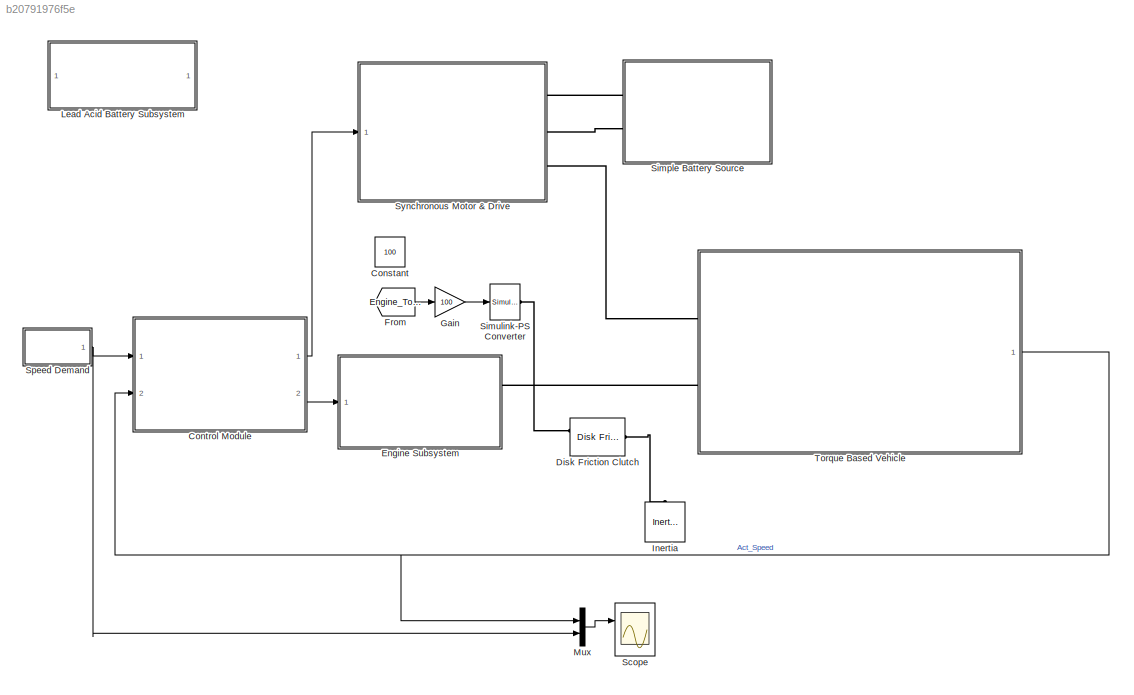
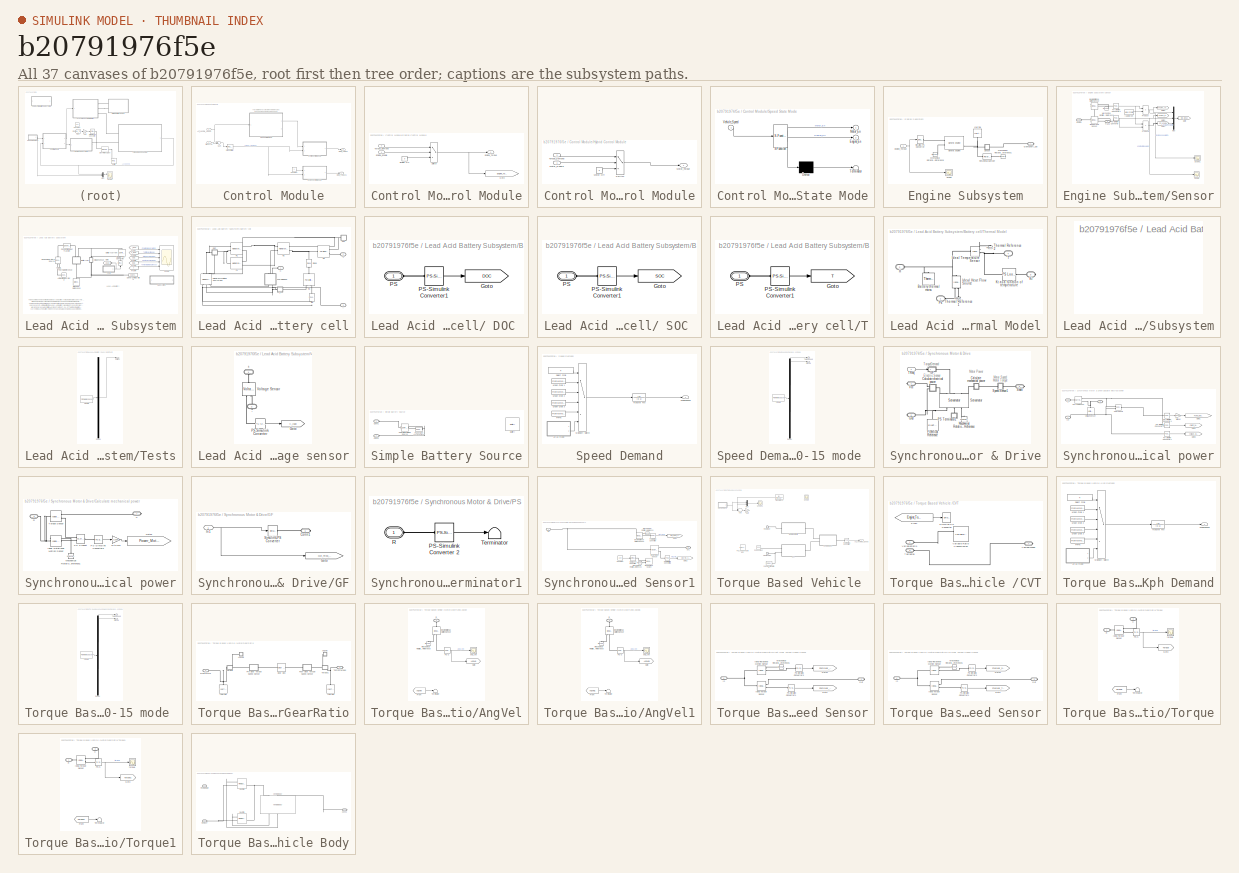
[diagram: thumbnail index - all 37 canvases of the model, root first then tree order]
MODEL slx_b20791976f5e
KIND model
BLOCK [Constant] Constant
  Commented = on
  Value = 100
BLOCK [SubSystem] Control Module
  FunctionWithSeparateData = off
  MaskHideContents = off
  MinAlgLoopOccurrences = off
  Opaque = off
  Ports = [2, 2]
  PropExecContextOutsideSubsystem = off
  RTWSystemCode = Auto
  RequestExecContextInheritance = off
BLOCK [Inport] Control Module/Act_Vehicle_Speed
  IconDisplay = Port number
  Port = 2
BLOCK [Constant] Control Module/Constant
BLOCK [Inport] Control Module/DriveCycle
  IconDisplay = Port number
BLOCK [SubSystem] Control Module/Engine Control Module
  FunctionWithSeparateData = off
  MaskHideContents = off
  MinAlgLoopOccurrences = off
  Opaque = off
  Ports = [2, 1]
  PropExecContextOutsideSubsystem = off
  RTWSystemCode = Auto
  RequestExecContextInheritance = off
BLOCK [Constant] Control Module/Engine Control Module/Engine Off
  Value = 0
BLOCK [Inport] Control Module/Engine Control Module/Engine_Enable
  IconDisplay = Port number
BLOCK [Outport] Control Module/Engine Control Module/Engine_Torque
  IconDisplay = Port number
BLOCK [Goto] Control Module/Engine Control Module/Goto
  GotoTag = Engine_Torque_Demand
  TagVisibility = global
BLOCK [Switch] Control Module/Engine Control Module/Switch
  InputSameDT = off
  SaturateOnIntegerOverflow = off
  Threshold = 0.5
BLOCK [Inport] Control Module/Engine Control Module/Torque_Demand
  IconDisplay = Port number
  Port = 2
BLOCK [SubSystem] Control Module/Hybrid Control Module
  Commented = on
  FunctionWithSeparateData = off
  MaskHideContents = off
  MinAlgLoopOccurrences = off
  Opaque = off
  Ports = [2, 1]
  PropExecContextOutsideSubsystem = off
  RTWSystemCode = Auto
  RequestExecContextInheritance = off
BLOCK [Constant] Control Module/Hybrid Control Module/Motor Off
  Value = 0
BLOCK [Inport] Control Module/Hybrid Control Module/Motor_Enable
  IconDisplay = Port number
BLOCK [Outport] Control Module/Hybrid Control Module/Motor_Torque
  IconDisplay = Port number
BLOCK [Switch] Control Module/Hybrid Control Module/Switch
  InputSameDT = off
  SaturateOnIntegerOverflow = off
  Threshold = 0.5
BLOCK [Inport] Control Module/Hybrid Control Module/Torque_Demand
  IconDisplay = Port number
  Port = 2
BLOCK [Outport] Control Module/Motor_Torque
  IconDisplay = Port number
BLOCK [Outport] Control Module/Motor_Torque1
  IconDisplay = Port number
  Port = 2
BLOCK [Reference] Control Module/PID Controller  REF=simulink/Continuous/PID Controller
  AntiWindupMode = none
  Controller = P
  D = 0
  DOutDataTypeStr = Inherit: Inherit via internal rule
  DOutMax = []
  DOutMin = []
  DParamDataTypeStr = Inherit: Inherit via internal rule
  DParamMax = []
  DParamMin = []
  ExternalReset = none
  FilterContinuousStateAttributes = ''
  FilterMethod = Forward Euler
  FilterOutDataTypeStr = Inherit: Inherit via internal rule
  FilterOutMax = []
  FilterOutMin = []
  FilterRTWStateStorageClass = Auto
  FilterStateMustResolveToSignalObject = off
  Form = Parallel
  I = 0
  IOutDataTypeStr = Inherit: Inherit via internal rule
  IOutMax = []
  IOutMin = []
  IParamDataTypeStr = Inherit: Inherit via internal rule
  IParamMax = []
  IParamMin = []
  IgnoreLimit = off
  InitialConditionForFilter = 0
  InitialConditionForIntegrator = 0
  InitialConditionSource = internal
  IntegratorContinuousStateAttributes = ''
  IntegratorMethod = Forward Euler
  IntegratorOutDataTypeStr = Inherit: Inherit via internal rule
  IntegratorOutMax = []
  IntegratorOutMin = []
  IntegratorRTWStateStorageClass = Auto
  IntegratorStateMustResolveToSignalObject = off
  Kb = 1
  KbOutDataTypeStr = Inherit: Inherit via internal rule
  KbOutMax = []
  KbOutMin = []
  KbParamDataTypeStr = Inherit: Inherit via internal rule
  KbParamMax = []
  KbParamMin = []
  Kt = 1
  KtOutDataTypeStr = Inherit: Inherit via internal rule
  KtOutMax = []
  KtOutMin = []
  KtParamDataTypeStr = Inherit: Inherit via internal rule
  KtParamMax = []
  KtParamMin = []
  LimitOutput = off
  LinearizeAsGain = on
  LockScale = off
  LowerSaturationLimit = -inf
  N = 0
  NOutDataTypeStr = Inherit: Inherit via internal rule
  NOutMax = []
  NOutMin = []
  NParamDataTypeStr = Inherit: Inherit via internal rule
  NParamMax = []
  NParamMin = []
  P = 100
  POutDataTypeStr = Inherit: Inherit via internal rule
  POutMax = []
  POutMin = []
  PParamDataTypeStr = Inherit: Inherit via internal rule
  PParamMax = []
  PParamMin = []
  Ports = [1, 1]
  RndMeth = Floor
  SampleTime = 1
  SaturateOnIntegerOverflow = off
  SaturationOutDataTypeStr = Inherit: Same as input
  SaturationOutMax = []
  SaturationOutMin = []
  SourceBlock = simulink/Continuous/PID Controller
  SourceType = PID 1dof
  SumAccumDataTypeStr = Inherit: Inherit via internal rule
  SumDAccumDataTypeStr = Inherit: Inherit via internal rule
  SumDOutDataTypeStr = Inherit: Inherit via internal rule
  SumDOutMax = []
  SumDOutMin = []
  SumI1AccumDataTypeStr = Inherit: Inherit via internal rule
  SumI1OutDataTypeStr = Inherit: Inherit via internal rule
  SumI1OutMax = []
  SumI1OutMin = []
  SumI2AccumDataTypeStr = Inherit: Inherit via internal rule
  SumI2OutDataTypeStr = Inherit: Inherit via internal rule
  SumI2OutMax = []
  SumI2OutMin = []
  SumI3AccumDataTypeStr = Inherit: Inherit via internal rule
  SumI3OutDataTypeStr = Inherit: Inherit via internal rule
  SumI3OutMax = []
  SumI3OutMin = []
  SumOutDataTypeStr = Inherit: Inherit via internal rule
  SumOutMax = []
  SumOutMin = []
  TimeDomain = Continuous-time
  TrackingMode = off
  UpperSaturationLimit = inf
  ZeroCross = on
BLOCK [SubSystem] Control Module/Speed State Mode
  Commented = on
  ErrorFcn = Stateflow.Translate.translate
  FunctionWithSeparateData = off
  MaskHideContents = off
  MinAlgLoopOccurrences = off
  Opaque = off
  PermitHierarchicalResolution = ExplicitOnly
  Ports = [1, 2]
  PropExecContextOutsideSubsystem = off
  RTWSystemCode = Auto
  RequestExecContextInheritance = off
  SFBlockType = Chart
  TreatAsAtomicUnit = on
BLOCK [Demux] Control Module/Speed State Mode/ Demux 
  Outputs = 1
  Ports = [1, 1]
BLOCK [S-Function] Control Module/Speed State Mode/ SFunction 
  EnableBusSupport = on
  FunctionName = sf_sfun
  PortCounts = [1 3]
  Ports = [1, 3]
  Tag = Stateflow S-Function System_HybridMotorcycle_v2 1
BLOCK [Terminator] Control Module/Speed State Mode/ Terminator 
BLOCK [Outport] Control Module/Speed State Mode/Engine_En
  IconDisplay = Port number
  Port = 2
BLOCK [Outport] Control Module/Speed State Mode/Motor_En
  IconDisplay = Port number
BLOCK [Inport] Control Module/Speed State Mode/Vehicle_Speed
  IconDisplay = Port number
BLOCK [Sum] Control Module/Sum
  InputSameDT = off
  Inputs = -+
  OutDataTypeStr = Inherit: Inherit via internal rule
  Ports = [2, 1]
  SaturateOnIntegerOverflow = off
BLOCK [Reference] Disk Friction Clutch  REF=sdl_lib/Clutches/Disk Friction Clutch
  ClassName = disk_friction_clutch
  Commented = on
  ComponentPath = sdl.clutches.disk_friction_clutch
  ComponentVariantNames = disk_friction_clutch
  ComponentVariants = sdl.clutches.disk_friction_clutch
  LocalVarLogging = []
  Ports = [0, 0, 0, 0, 0, 2, 1]
  SchemaVersion = 1
  SourceBlock = sdl_lib/Clutches/Disk Friction Clutch
  SourceFile = sdl.clutches.disk_friction_clutch
  SourceType = Disk Friction Clutch
  d_f = 1
  d_f_unit = 1
  d_i = 100
  d_i_unit = mm
  d_o = 150
  d_o_unit = mm
  friction_model = 1
  friction_model_unit = 1
  geometry_model = 1
  geometry_model_unit = 1
  initial_state_locked = 0
  initial_state_locked_unit = 1
  mu_coulomb = 0.3
  mu_coulomb_unit = 1
  mu_coulomb_vector = [ 0.29 0.28 0.26 0.22 0.21 0.2 0.2 0.19 0.19 0.19 0.19 0.19 ]
  mu_coulomb_vector_unit = 1
  mu_extrap_method = 1
  mu_extrap_method_unit = 1
  mu_interp_method = 1
  mu_interp_method_unit = 1
  mu_static = 0.35
  mu_static_unit = 1
  mu_visc = 0
  mu_visc_unit = N*m/(rad/s)
  mu_w_vector = [ 0 0.1 0.2 0.3 0.4 0.5 1 2 5 10 100 1000 ]
  mu_w_vector_unit = rad/s
  nS = 4
  nS_unit = 1
  piston_area = 0.001
  piston_area_unit = m^2
  pressure_min = 0.1
  pressure_min_unit = Pa
  r_eff = 130
  r_eff_unit = mm
  w_tol = 0.001
  w_tol_unit = rad/s
BLOCK [SubSystem] Engine Subsystem
  FunctionWithSeparateData = off
  MaskHideContents = off
  MinAlgLoopOccurrences = off
  Opaque = off
  Ports = [1, 0, 0, 0, 0, 0, 1]
  PropExecContextOutsideSubsystem = off
  RTWSystemCode = Auto
  RequestExecContextInheritance = off
BLOCK [PMIOPort] Engine Subsystem/CrankShaft_Out
  Port = 1
  Side = Right
BLOCK [Inport] Engine Subsystem/Engine_Torque
  IconDisplay = Port number
BLOCK [Reference] Engine Subsystem/Generic Engine  REF=sdl_lib/Engines/Generic Engine
  ClassName = generic_engine
  ComponentPath = sdl.engines.generic_engine
  ComponentVariantNames = generic_engine
  ComponentVariants = sdl.engines.generic_engine
  LocalVarLogging = []
  P_max = 8300
  P_max_unit = W
  Ports = [0, 0, 0, 0, 0, 2, 3]
  SchemaVersion = 1
  SourceBlock = sdl_lib/Engines/Generic Engine
  SourceFile = sdl.engines.generic_engine
  SourceType = Generic Engine
  T0 = 0
  T0_unit = 1
  bmep_tab = [ 0 250 500 625 750 1000 1.15e+3 1.25e+3 ]
  bmep_tab_unit = kPa
  bsfc_tab = [ 410 380 300 280 270 290 320 380; 410 370 290 270 260 270 285 320; 415 380 290 275 265 270 270 300; 420 390 310 290 285 280 280 285; 430 410 340 320 310 300 310 320; 450 430 370 340 330 330 350 380 ]
  bsfc_tab_unit = g/hr/kW
  displaced_volume = 400
  displaced_volume_unit = cm^3
  engine_type = 1
  engine_type_unit = 1
  fc_interp_method = 1
  fc_interp_method_unit = 1
  fc_model = 1
  fc_model_unit = 1
  fc_per_rev = 25
  fc_per_rev_unit = mg/rev
  fc_tab = [ 0.5 0.9 1.4 1.6 1.9 2.7 3.4 4.4; 1 1.7 2.7 3.1 3.6 5 6 7.4; 1.4 2.7 4 4.8 5.6 7.5 8.5 10.5; 2 3.6 5.8 6.7 8 10.4 11.7 13.3; 2.5 4.8 7.9 9.4 10.8 14 16.2 18.6; 3.1 6 10.3 11.9 13.8 18.4 22 26.5 ]
  fc_tab_unit = g/s
  fc_trq_tab = [ 0 80 160 200 240 320 360 400 ]
  fc_trq_tab_unit = N*m
  fc_w_tab = [ 1000 2e+3 3e+3 4e+3 5e+3 6e+3 ]
  fc_w_tab_unit = rpm
  idle_speed = 1
  idle_speed_reference = 1000
  idle_speed_reference_unit = rpm
  idle_speed_unit = 1
  idle_w_thr = 1
  idle_w_thr_unit = rpm
  inertia = 1
  inertia_unit = kg*m^2
  initial_velocity = 800
  initial_velocity_unit = rpm
  interp_method = 1
  interp_method_unit = 1
  model_inertia = 0
  model_inertia_unit = 1
  model_parameterization = 1
  model_parameterization_unit = 1
  model_time_constant = 0
  model_time_constant_unit = 1
  pwr_tab = [ 2e+4 4e+4 7.8e+4 1.2e+5 1.45e+5 1.48e+5 1.25e+5 6e+4 ]
  pwr_tab_unit = W
  rev_per_cycle = 2
  rev_per_cycle_unit = 1
  tau_controller = 1
  tau_controller_unit = s
  time_constant = 0.2
  time_constant_unit = s
  trq_tab = [ 380 380 380 380 350 280 200 80 ]
  trq_tab_unit = N*m
  w_P_max = 8500
  w_P_max_unit = rpm
  w_max = 9000
  w_max_unit = rpm
  w_min = 500
  w_min_unit = rpm
  w_tab = [ 500 1000 2e+3 3e+3 4e+3 5e+3 6e+3 7e+3 ]
  w_tab_unit = rpm
  w_thr = 100
  w_thr_unit = rpm
BLOCK [Reference] Engine Subsystem/Inertia1  REF=fl_lib/Mechanical/Rotational Elements/Inertia
  ClassName = inertia
  ComponentPath = foundation.mechanical.rotational.inertia
  ComponentVariantNames = inertia
  ComponentVariants = foundation.mechanical.rotational.inertia
  LocalVarDescs = |t
  LocalVarLogging = 0
  LocalVarNames = |t
  Ports = [0, 0, 0, 0, 0, 1]
  SchemaVersion = 1
  SourceBlock = fl_lib/Mechanical/Rotational Elements/Inertia
  SourceFile = foundation.mechanical.rotational.inertia
  SourceType = Inertia
  inertia = HEV_Param.ICE.Shaft_Inertia
  inertia_unit = kg*m^2
  initial_velocity = 0
  initial_velocity_unit = rad/s
  t_Log = off
BLOCK [Reference] Engine Subsystem/Mechanical Rotational Reference  REF=fl_lib/Mechanical/Rotational Elements/Mechanical
Rotational Reference
  ClassName = reference
  ComponentPath = foundation.mechanical.rotational.reference
  ComponentVariantNames = reference
  ComponentVariants = foundation.mechanical.rotational.reference
  LocalVarDescs = |t
  LocalVarLogging = 0
  LocalVarNames = |t
  Ports = [0, 0, 0, 0, 0, 1]
  SchemaVersion = 1
  SourceBlock = fl_lib/Mechanical/Rotational Elements/Mechanical\nRotational Reference
  SourceFile = foundation.mechanical.rotational.reference
  SourceType = Mechanical\nRotational Reference
  t_Log = off
BLOCK [Reference] Engine Subsystem/Mechanical Rotational Reference1  REF=fl_lib/Mechanical/Rotational Elements/Mechanical
Rotational Reference
  ClassName = reference
  ComponentPath = foundation.mechanical.rotational.reference
  ComponentVariantNames = reference
  ComponentVariants = foundation.mechanical.rotational.reference
  LocalVarDescs = |t
  LocalVarLogging = 0
  LocalVarNames = |t
  Ports = [0, 0, 0, 0, 0, 1]
  SchemaVersion = 1
  SourceBlock = fl_lib/Mechanical/Rotational Elements/Mechanical\nRotational Reference
  SourceFile = foundation.mechanical.rotational.reference
  SourceType = Mechanical\nRotational Reference
  t_Log = off
BLOCK [Reference] Engine Subsystem/Rotational Damper  REF=fl_lib/Mechanical/Rotational Elements/Rotational Damper
  ClassName = damper
  ComponentPath = foundation.mechanical.rotational.damper
  ComponentVariantNames = damper
  ComponentVariants = foundation.mechanical.rotational.damper
  D = HEV_Param.ICE.Friction
  D_unit = N*m/(rad/s)
  LocalVarDescs = |t|w
  LocalVarLogging = [0 0]
  LocalVarNames = |t|w
  Ports = [0, 0, 0, 0, 0, 1, 1]
  SchemaVersion = 1
  SourceBlock = fl_lib/Mechanical/Rotational Elements/Rotational Damper
  SourceFile = foundation.mechanical.rotational.damper
  SourceType = Rotational Damper
  t_Log = off
  w_Log = off
BLOCK [Scope] Engine Subsystem/Scope
  DataFormat = StructureWithTime
  Floating = off
  NumInputPorts = 1
  Ports = [1]
  SampleTime = 0
  SaveName = ScopeData7
  ShowLegends = off
  YMax = 1.05
  YMin = -0.05
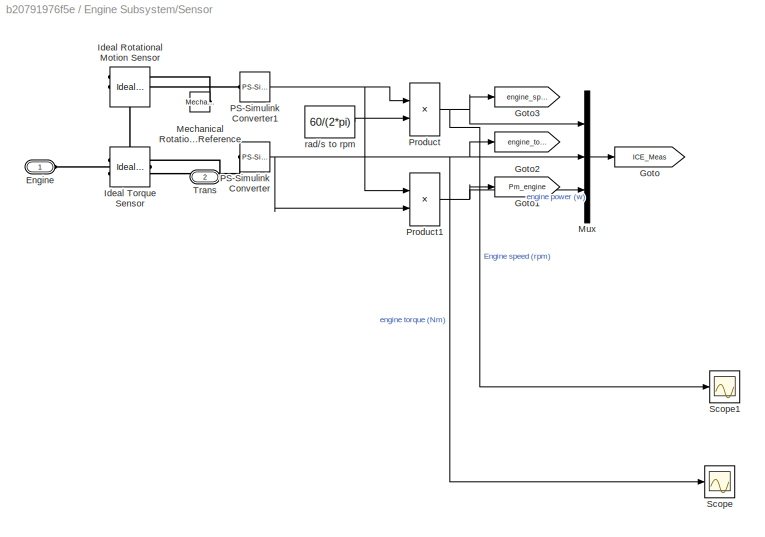
BLOCK [SubSystem] Engine Subsystem/Sensor
  FunctionWithSeparateData = off
  MaskHideContents = off
  MinAlgLoopOccurrences = off
  Opaque = off
  Ports = [0, 0, 0, 0, 0, 1, 1]
  PropExecContextOutsideSubsystem = off
  RTWSystemCode = Auto
  RequestExecContextInheritance = off
BLOCK [PMIOPort] Engine Subsystem/Sensor/Engine
  Port = 1
  Side = Left
BLOCK [Goto] Engine Subsystem/Sensor/Goto
  GotoTag = ICE_Meas
  TagVisibility = global
BLOCK [Goto] Engine Subsystem/Sensor/Goto1
  GotoTag = Pm_engine
  TagVisibility = global
BLOCK [Goto] Engine Subsystem/Sensor/Goto2
  GotoTag = engine_torque
  TagVisibility = global
BLOCK [Goto] Engine Subsystem/Sensor/Goto3
  GotoTag = engine_speed
  TagVisibility = global
BLOCK [Reference] Engine Subsystem/Sensor/Ideal Rotational Motion Sensor  REF=fl_lib/Mechanical/Mechanical Sensors/Ideal Rotational
Motion Sensor
  ClassName = angular_velocity
  ComponentPath = foundation.mechanical.sensors.angular_velocity
  ComponentVariantNames = angular_velocity
  ComponentVariants = foundation.mechanical.sensors.angular_velocity
  LocalVarDescs = |w|t|phi
  LocalVarLogging = [0 0 0]
  LocalVarNames = |w|t|phi
  Ports = [0, 0, 0, 0, 0, 1, 3]
  SchemaVersion = 1
  SourceBlock = fl_lib/Mechanical/Mechanical Sensors/Ideal Rotational\nMotion Sensor
  SourceFile = foundation.mechanical.sensors.angular_velocity
  SourceType = Ideal Rotational\nMotion Sensor
  offset = 0
  offset_unit = rad
  phi_Log = off
  t_Log = off
  w_Log = off
BLOCK [Reference] Engine Subsystem/Sensor/Ideal Torque Sensor  REF=fl_lib/Mechanical/Mechanical Sensors/Ideal Torque Sensor
  ClassName = torque
  ComponentPath = foundation.mechanical.sensors.torque
  ComponentVariantNames = torque
  ComponentVariants = foundation.mechanical.sensors.torque
  LocalVarDescs = |w|t
  LocalVarLogging = [0 0]
  LocalVarNames = |w|t
  Ports = [0, 0, 0, 0, 0, 1, 2]
  SchemaVersion = 1
  SourceBlock = fl_lib/Mechanical/Mechanical Sensors/Ideal Torque Sensor
  SourceFile = foundation.mechanical.sensors.torque
  SourceType = Ideal Torque Sensor
  t_Log = off
  w_Log = off
BLOCK [Reference] Engine Subsystem/Sensor/Mechanical Rotational Reference  REF=fl_lib/Mechanical/Rotational Elements/Mechanical
Rotational Reference
  ClassName = reference
  ComponentPath = foundation.mechanical.rotational.reference
  ComponentVariantNames = reference
  ComponentVariants = foundation.mechanical.rotational.reference
  LocalVarDescs = |t
  LocalVarLogging = 0
  LocalVarNames = |t
  Ports = [0, 0, 0, 0, 0, 1]
  SchemaVersion = 1
  SourceBlock = fl_lib/Mechanical/Rotational Elements/Mechanical\nRotational Reference
  SourceFile = foundation.mechanical.rotational.reference
  SourceType = Mechanical\nRotational Reference
  t_Log = off
BLOCK [Mux] Engine Subsystem/Sensor/Mux
  DisplayOption = bar
  Inputs = 3
  Ports = [3, 1]
BLOCK [Reference] Engine Subsystem/Sensor/PS-Simulink Converter  REF=nesl_utility/PS-Simulink
Converter
  AffineConversion = off
  Frequencies = []
  LeftPortType = input
  PhysicalDomain = network_engine_domain
  Ports = [0, 1, 0, 0, 0, 1]
  PseudoPeriodic = off
  RightPortType = output
  SourceBlock = nesl_utility/PS-Simulink\nConverter
  SourceType = PS-Simulink\nConverter
  SubClassName = ps_output
  Unit = N*m
BLOCK [Reference] Engine Subsystem/Sensor/PS-Simulink Converter1  REF=nesl_utility/PS-Simulink
Converter
  AffineConversion = off
  Frequencies = []
  LeftPortType = input
  PhysicalDomain = network_engine_domain
  Ports = [0, 1, 0, 0, 0, 1]
  PseudoPeriodic = off
  RightPortType = output
  SourceBlock = nesl_utility/PS-Simulink\nConverter
  SourceType = PS-Simulink\nConverter
  SubClassName = ps_output
  Unit = rad/s
BLOCK [Product] Engine Subsystem/Sensor/Product
  InputSameDT = off
  OutDataTypeStr = Inherit: Inherit via internal rule
  Ports = [2, 1]
  SaturateOnIntegerOverflow = off
BLOCK [Product] Engine Subsystem/Sensor/Product1
  InputSameDT = off
  OutDataTypeStr = Inherit: Inherit via internal rule
  Ports = [2, 1]
  SaturateOnIntegerOverflow = off
BLOCK [Scope] Engine Subsystem/Sensor/Scope
  DataFormat = StructureWithTime
  Floating = off
  NumInputPorts = 1
  Ports = [1]
  SampleTime = 0
  SaveName = ScopeData3
  ShowLegends = off
  YMax = 0.0175
  YMin = -0.0175
BLOCK [Scope] Engine Subsystem/Sensor/Scope1
  DataFormat = StructureWithTime
  Floating = off
  NumInputPorts = 1
  Ports = [1]
  SampleTime = 0
  SaveName = ScopeData6
  ShowLegends = off
  YMax = 4.5e-13
  YMin = -2.5e-14
BLOCK [PMIOPort] Engine Subsystem/Sensor/Trans
  Port = 2
  Side = Right
BLOCK [Constant] Engine Subsystem/Sensor/rad//s to rpm
  Value = 60/(2*pi)
BLOCK [Reference] Engine Subsystem/Simulink-PS Converter  REF=nesl_utility/Simulink-PS
Converter
  AffineConversion = off
  Frequencies = []
  InputFilterTimeConstant = 0.001
  InputFiltering = off
  LeftPortType = input
  NoiseDistribution = none
  NoiseParameters = []
  PhysicalDomain = network_engine_domain
  Ports = [1, 0, 0, 0, 0, 0, 1]
  PseudoPeriodic = off
  RightPortType = output
  SimscapeFilterOrder = 1
  SourceBlock = nesl_utility/Simulink-PS\nConverter
  SourceType = Simulink-PS\nConverter
  SubClassName = ps_input
  UdotUserProvided = 1
  Unit = N*m
BLOCK [From] From
  Commented = on
  GotoTag = Engine_Torque_Demand
  TagVisibility = global
BLOCK [Gain] Gain
  Commented = on
  Gain = 100
  OutDataTypeStr = Inherit: Inherit via internal rule
  ParamDataTypeStr = Inherit: Inherit via internal rule
  SaturateOnIntegerOverflow = off
BLOCK [Reference] Inertia  REF=fl_lib/Mechanical/Rotational Elements/Inertia
  ClassName = inertia
  Commented = on
  ComponentPath = foundation.mechanical.rotational.inertia
  ComponentVariantNames = inertia
  ComponentVariants = foundation.mechanical.rotational.inertia
  LocalVarDescs = |t
  LocalVarLogging = 0
  LocalVarNames = |t
  Ports = [0, 0, 0, 0, 0, 1]
  SchemaVersion = 1
  SourceBlock = fl_lib/Mechanical/Rotational Elements/Inertia
  SourceFile = foundation.mechanical.rotational.inertia
  SourceType = Inertia
  inertia = 0.01
  inertia_unit = kg*m^2
  initial_velocity = 0
  initial_velocity_unit = rad/s
  t_Log = off
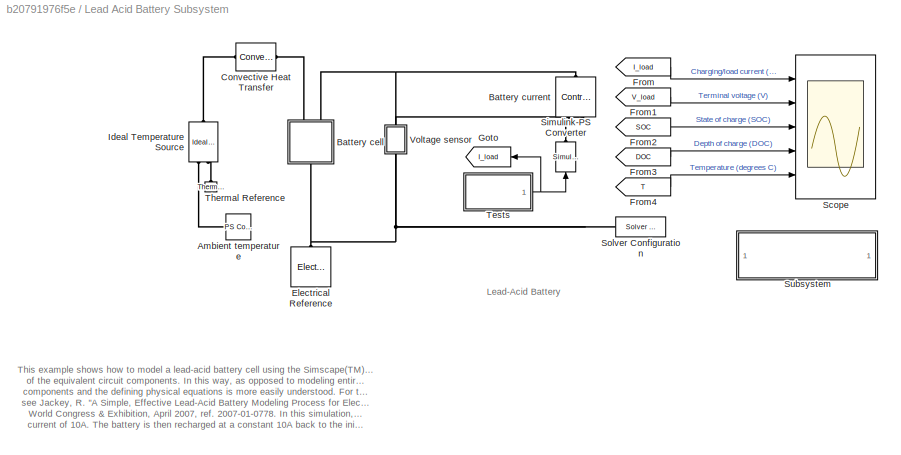
BLOCK [SubSystem] Lead Acid Battery Subsystem
  Commented = on
  FunctionWithSeparateData = off
  MaskHideContents = off
  MinAlgLoopOccurrences = off
  Opaque = off
  Ports = []
  PropExecContextOutsideSubsystem = off
  RTWSystemCode = Auto
  RequestExecContextInheritance = off
BLOCK [Reference] Lead Acid Battery Subsystem/Ambient temperature  REF=fl_lib/Physical Signals/Sources/PS Constant
  ClassName = ps_constant
  ComponentPath = foundation.physical_signal.sources.constant
  ComponentVariantNames = constant
  ComponentVariants = foundation.physical_signal.sources.constant
  LocalVarLogging = []
  Ports = [0, 0, 0, 0, 0, 0, 1]
  SchemaVersion = 1
  SourceBlock = fl_lib/Physical Signals/Sources/PS Constant
  SourceFile = foundation.physical_signal.sources.constant
  SourceType = PS Constant
  constant = 273+25
  constant_unit = 1
BLOCK [SubSystem] Lead Acid Battery Subsystem/Battery cell
  FunctionWithSeparateData = off
  MaskHideContents = off
  MinAlgLoopOccurrences = off
  Opaque = off
  Ports = [0, 0, 0, 0, 0, 2, 1]
  PropExecContextOutsideSubsystem = off
  RTWSystemCode = Auto
  RequestExecContextInheritance = off
BLOCK [SubSystem] Lead Acid Battery Subsystem/Battery cell/ DOC 
  FunctionWithSeparateData = off
  MaskHideContents = off
  MinAlgLoopOccurrences = off
  Opaque = off
  Ports = [0, 0, 0, 0, 0, 1]
  PropExecContextOutsideSubsystem = off
  RTWSystemCode = Auto
  RequestExecContextInheritance = off
BLOCK [Goto] Lead Acid Battery Subsystem/Battery cell/ DOC /Goto
  GotoTag = DOC
  TagVisibility = global
BLOCK [PMIOPort] Lead Acid Battery Subsystem/Battery cell/ DOC /PS
  Port = 1
  Side = Left
BLOCK [Reference] Lead Acid Battery Subsystem/Battery cell/ DOC /PS-Simulink Converter1  REF=nesl_utility/PS-Simulink
Converter
  AffineConversion = off
  Frequencies = []
  LeftPortType = input
  PhysicalDomain = network_engine_domain
  Ports = [0, 1, 0, 0, 0, 1]
  PseudoPeriodic = off
  RightPortType = output
  SourceBlock = nesl_utility/PS-Simulink\nConverter
  SourceType = PS-Simulink\nConverter
  SubClassName = ps_output
  Unit = 1
BLOCK [SubSystem] Lead Acid Battery Subsystem/Battery cell/ SOC 
  FunctionWithSeparateData = off
  MaskHideContents = off
  MinAlgLoopOccurrences = off
  Opaque = off
  Ports = [0, 0, 0, 0, 0, 1]
  PropExecContextOutsideSubsystem = off
  RTWSystemCode = Auto
  RequestExecContextInheritance = off
BLOCK [Goto] Lead Acid Battery Subsystem/Battery cell/ SOC /Goto
  GotoTag = SOC
  TagVisibility = global
BLOCK [PMIOPort] Lead Acid Battery Subsystem/Battery cell/ SOC /PS
  Port = 1
  Side = Left
BLOCK [Reference] Lead Acid Battery Subsystem/Battery cell/ SOC /PS-Simulink Converter1  REF=nesl_utility/PS-Simulink
Converter
  AffineConversion = off
  Frequencies = []
  LeftPortType = input
  PhysicalDomain = network_engine_domain
  Ports = [0, 1, 0, 0, 0, 1]
  PseudoPeriodic = off
  RightPortType = output
  SourceBlock = nesl_utility/PS-Simulink\nConverter
  SourceType = PS-Simulink\nConverter
  SubClassName = ps_output
  Unit = 1
BLOCK [PMIOPort] Lead Acid Battery Subsystem/Battery cell/+
  Port = 2
  Side = Left
  Tag = PMCPort
BLOCK [PMIOPort] Lead Acid Battery Subsystem/Battery cell/-
  Port = 3
  Side = Right
  Tag = PMCPort
BLOCK [Reference] Lead Acid Battery Subsystem/Battery cell/C1  REF=LeadAcidBattery_lib/Main Branch
Capacitance, C1
  ClassName = mbCapacitance
  Cmin = 1e-5
  Cmin_unit = F
  ComponentPath = LeadAcidBattery.C1
  ComponentVariantNames = C1
  ComponentVariants = LeadAcidBattery.C1
  LocalVarDescs = |Current through variable|Voltage across variable|Charge variable
  LocalVarLogging = [0 0 0]
  LocalVarNames = |i|v|Q
  Ports = [0, 0, 0, 0, 0, 2, 1]
  Q_Log = off
  SchemaVersion = 1
  SourceBlock = LeadAcidBattery_lib/Main Branch\nCapacitance, C1
  SourceFile = LeadAcidBattery.C1
  SourceType = Main Branch\nCapacitance, C1
  Tau1 = Tau1
  Tau1_unit = s
  i_Log = off
  v_Log = off
BLOCK [Reference] Lead Acid Battery Subsystem/Battery cell/Diode  REF=fl_lib/Electrical/Electrical Elements/Diode
  ClassName = pwl_diode
  ComponentPath = foundation.electrical.elements.pwl_diode
  ComponentVariantNames = pwl_diode
  ComponentVariants = foundation.electrical.elements.pwl_diode
  Goff = 1e-08
  Goff_unit = 1/Ohm
  LocalVarDescs = |Diode current (A)|Voltage across diode (V)|Power (W)
  LocalVarLogging = [0 0 0]
  LocalVarNames = |current|voltage|power
  Ports = [0, 0, 0, 0, 0, 1, 1]
  Ron = 0.3
  Ron_unit = Ohm
  SchemaVersion = 1
  SourceBlock = fl_lib/Electrical/Electrical Elements/Diode
  SourceFile = foundation.electrical.elements.pwl_diode
  SourceType = Diode
  Vf = 0.6
  Vf_unit = V
  i_Log = off
  v_Log = off
BLOCK [Reference] Lead Acid Battery Subsystem/Battery cell/Ep  REF=fl_lib/Electrical/Electrical Sources/DC Voltage Source
  ClassName = dc_voltage_source
  ComponentPath = foundation.electrical.sources.dc_voltage
  ComponentVariantNames = dc_voltage
  ComponentVariants = foundation.electrical.sources.dc_voltage
  LocalVarDescs = |Current (A)|Voltage (V)|Power (W)
  LocalVarLogging = [0 0 0]
  LocalVarNames = |current|voltage|power
  Ports = [0, 0, 0, 0, 0, 1, 1]
  SchemaVersion = 1
  SourceBlock = fl_lib/Electrical/Electrical Sources/DC Voltage Source
  SourceFile = foundation.electrical.sources.dc_voltage
  SourceType = DC Voltage Source
  i_Log = off
  v0 = Ep
  v0_unit = V
  v_Log = off
BLOCK [PMIOPort] Lead Acid Battery Subsystem/Battery cell/H
  Port = 1
  Side = Left
  Tag = PMCPort
BLOCK [Reference] Lead Acid Battery Subsystem/Battery cell/Main Branch Voltage Source (Em)  REF=LeadAcidBattery_lib/Main Branch Voltage
Source, Em
  C0 = Costar
  C0_unit = s*A
  ClassName = mbVoltageSource
  ComponentPath = LeadAcidBattery.Em
  ComponentVariantNames = Em
  ComponentVariants = LeadAcidBattery.Em
  Em0 = Emo
  Em0_unit = V
  Iavg_Log = off
  Istar = Istar
  Istar_unit = A
  Kc = Kc
  Kc_unit = 1
  Ke = Ke
  Ke_unit = V/K
  LocalVarDescs = |Current through variable|Voltage across variable|usable battery capacity|total battery capacity|battery charge|average current given by (I/(Ts+1))
  LocalVarLogging = [0 0 0 0 0 0]
  LocalVarNames = |i|v|cap_u|cap_t|Q|Iavg
  Ports = [0, 0, 0, 0, 0, 3, 3]
  Qe_Log = off
  Qinit = Qe_init
  Qinit_unit = s*A
  SchemaVersion = 1
  SourceBlock = LeadAcidBattery_lib/Main Branch Voltage\nSource, Em
  SourceFile = LeadAcidBattery.Em
  SourceType = Main Branch Voltage\nSource, Em
  Tau1 = Tau1
  Tau1_unit = s
  delta = delta
  delta_unit = 1
  i_Log = off
  v_Log = off
BLOCK [Reference] Lead Acid Battery Subsystem/Battery cell/R0  REF=LeadAcidBattery_lib/Terminal Resistance,
R0
  A0 = Ao
  A0_unit = 1
  ClassName = terminalResistance
  ComponentPath = LeadAcidBattery.R0
  ComponentVariantNames = R0
  ComponentVariants = LeadAcidBattery.R0
  LocalVarDescs = |Current through variable|Voltage across variable
  LocalVarLogging = [0 0]
  LocalVarNames = |i|v
  Ports = [0, 0, 0, 0, 0, 2, 1]
  R00 = Roo
  R00_unit = Ohm
  SchemaVersion = 1
  SourceBlock = LeadAcidBattery_lib/Terminal Resistance,\nR0
  SourceFile = LeadAcidBattery.R0
  SourceType = Terminal Resistance,\nR0
  i_Log = off
  v_Log = off
BLOCK [Reference] Lead Acid Battery Subsystem/Battery cell/R1  REF=LeadAcidBattery_lib/Main Branch
Resistance, R1
  ClassName = R1
  ComponentPath = LeadAcidBattery.R1
  ComponentVariantNames = R1
  ComponentVariants = LeadAcidBattery.R1
  DOC_min = 1e-006
  DOC_min_unit = 1
  LocalVarDescs = |Current through variable|Voltage across variable
  LocalVarLogging = [0 0]
  LocalVarNames = |i|v
  Ports = [0, 0, 0, 0, 0, 2, 2]
  R10 = R10
  R10_unit = Ohm
  SchemaVersion = 1
  SourceBlock = LeadAcidBattery_lib/Main Branch\nResistance, R1
  SourceFile = LeadAcidBattery.R1
  SourceType = Main Branch\nResistance, R1
  i_Log = off
  v_Log = off
BLOCK [Reference] Lead Acid Battery Subsystem/Battery cell/R2  REF=LeadAcidBattery_lib/Main Branch
Resistance, R2
  A21 = A21
  A21_unit = 1
  A22 = A22
  A22_unit = 1
  ClassName = mbResistance2
  ComponentPath = LeadAcidBattery.R2
  ComponentVariantNames = R2
  ComponentVariants = LeadAcidBattery.R2
  Istar = Istar
  Istar_unit = A
  LocalVarDescs = |Current through variable|Voltage across variable
  LocalVarLogging = [0 0]
  LocalVarNames = |i|v
  Ports = [0, 0, 0, 0, 0, 2, 2]
  R20 = R20
  R20_unit = Ohm
  SchemaVersion = 1
  SourceBlock = LeadAcidBattery_lib/Main Branch\nResistance, R2
  SourceFile = LeadAcidBattery.R2
  SourceType = Main Branch\nResistance, R2
  i_Log = off
  v_Log = off
BLOCK [Reference] Lead Acid Battery Subsystem/Battery cell/Rp  REF=LeadAcidBattery_lib/Parasitic Branch
Resistance, Rp
  Ap = Ap
  Ap_unit = 1
  ClassName = pbResistance
  ComponentPath = LeadAcidBattery.Rp
  ComponentVariantNames = Rp
  ComponentVariants = LeadAcidBattery.Rp
  Gp0 = Gpo
  Gp0_unit = 1/Ohm
  LocalVarDescs = |Current through variable|Voltage across variable|average voltage given by (V/(Ts+1))
  LocalVarLogging = [0 0 0]
  LocalVarNames = |i|v|Vavg
  Ports = [0, 0, 0, 0, 0, 1, 2]
  SchemaVersion = 1
  SourceBlock = LeadAcidBattery_lib/Parasitic Branch\nResistance, Rp
  SourceFile = LeadAcidBattery.Rp
  SourceType = Parasitic Branch\nResistance, Rp
  Tf = theta_f
  Tf_unit = C
  Vp0 = Vpo
  Vp0_unit = V
  i_Log = off
  v_Log = off
BLOCK [SubSystem] Lead Acid Battery Subsystem/Battery cell/T
  FunctionWithSeparateData = off
  MaskHideContents = off
  MinAlgLoopOccurrences = off
  Opaque = off
  Ports = [0, 0, 0, 0, 0, 1]
  PropExecContextOutsideSubsystem = off
  RTWSystemCode = Auto
  RequestExecContextInheritance = off
BLOCK [Goto] Lead Acid Battery Subsystem/Battery cell/T/Goto
  GotoTag = T
  TagVisibility = global
BLOCK [PMIOPort] Lead Acid Battery Subsystem/Battery cell/T/PS
  Port = 1
  Side = Left
BLOCK [Reference] Lead Acid Battery Subsystem/Battery cell/T/PS-Simulink Converter1  REF=nesl_utility/PS-Simulink
Converter
  AffineConversion = on
  Frequencies = []
  LeftPortType = input
  PhysicalDomain = network_engine_domain
  Ports = [0, 1, 0, 0, 0, 1]
  PseudoPeriodic = off
  RightPortType = output
  SourceBlock = nesl_utility/PS-Simulink\nConverter
  SourceType = PS-Simulink\nConverter
  SubClassName = ps_output
  Unit = C
BLOCK [SubSystem] Lead Acid Battery Subsystem/Battery cell/Thermal Model
  FunctionWithSeparateData = off
  MaskHideContents = off
  MinAlgLoopOccurrences = off
  Opaque = off
  Ports = [0, 0, 0, 0, 0, 2, 2]
  PropExecContextOutsideSubsystem = off
  RTWSystemCode = Auto
  RequestExecContextInheritance = off
BLOCK [Reference] Lead Acid Battery Subsystem/Battery cell/Thermal Model/Battery thermal mass  REF=fl_lib/Thermal/Thermal Elements/Thermal Mass
  ClassName = thermal_mass
  ComponentPath = foundation.thermal.elements.mass
  ComponentVariantNames = mass
  ComponentVariants = foundation.thermal.elements.mass
  LocalVarDescs = |Heat flow (J/s)|Mass temperature (K)
  LocalVarLogging = [0 0]
  LocalVarNames = |heat_flow|temperature
  Ports = [0, 0, 0, 0, 0, 1]
  Q_Log = off
  SchemaVersion = 1
  SourceBlock = fl_lib/Thermal/Thermal Elements/Thermal Mass
  SourceFile = foundation.thermal.elements.mass
  SourceType = Thermal Mass
  init_temp = theta_init+273
  init_temp_unit = K
  mass = 1
  mass_unit = kg
  sp_heat = Ctheta
  sp_heat_unit = J/kg/K
BLOCK [PMIOPort] Lead Acid Battery Subsystem/Battery cell/Thermal Model/H
  Port = 2
  Side = Left
  Tag = PMCPort
BLOCK [Reference] Lead Acid Battery Subsystem/Battery cell/Thermal Model/Ideal Heat Flow Source  REF=fl_lib/Thermal/Thermal Sources/Ideal Heat Flow
Source
  ClassName = heat_flow_src
  ComponentPath = foundation.thermal.sources.heat_flow
  ComponentVariantNames = heat_flow
  ComponentVariants = foundation.thermal.sources.heat_flow
  LocalVarDescs = |Heat flow through the source (J/s)|Temperature differential across the source (K)
  LocalVarLogging = [0 0]
  LocalVarNames = |heat_flow|T_differential
  Ports = [0, 0, 0, 0, 0, 1, 2]
  Q_Log = off
  SchemaVersion = 1
  SourceBlock = fl_lib/Thermal/Thermal Sources/Ideal Heat Flow\nSource
  SourceFile = foundation.thermal.sources.heat_flow
  SourceType = Ideal Heat Flow\nSource
  T_Log = off
BLOCK [Reference] Lead Acid Battery Subsystem/Battery cell/Thermal Model/Ideal Temperature Sensor  REF=fl_lib/Thermal/Thermal Sensors/Ideal Temperature
Sensor
  ClassName = sensor_temperature
  ComponentPath = foundation.thermal.sensors.temperature
  ComponentVariantNames = temperature
  ComponentVariants = foundation.thermal.sensors.temperature
  LocalVarDescs = |Qs|Ts
  LocalVarLogging = []
  LocalVarNames = |Qs|Ts
  Ports = [0, 0, 0, 0, 0, 1, 2]
  Qs_Log = off
  SchemaVersion = 1
  SourceBlock = fl_lib/Thermal/Thermal Sensors/Ideal Temperature\nSensor
  SourceFile = foundation.thermal.sensors.temperature
  SourceType = Ideal Temperature\nSensor
  Ts_Log = off
BLOCK [PMIOPort] Lead Acid Battery Subsystem/Battery cell/Thermal Model/Kt
  Port = 3
  Side = Right
  Tag = PMCPort
BLOCK [Reference] Lead Acid Battery Subsystem/Battery cell/Thermal Model/Kt as a function of temperature  REF=fl_lib/Physical Signals/Lookup Tables/PS Lookup Table (1D)
  ClassName = ps_1d_tlu
  ComponentPath = foundation.physical_signal.lookup_tables.one_dimensional
  ComponentVariantNames = one_dimensional
  ComponentVariants = foundation.physical_signal.lookup_tables.one_dimensional
  LocalVarLogging = []
  Ports = [0, 0, 0, 0, 0, 1, 1]
  SchemaVersion = 1
  SourceBlock = fl_lib/Physical Signals/Lookup Tables/PS Lookup Table (1D)
  SourceFile = foundation.physical_signal.lookup_tables.one_dimensional
  SourceType = PS Lookup Table (1D)
  extrap_method = 1
  extrap_method_unit = 1
  interp_method = 1
  interp_method_unit = 1
  x_t = [theta_f, Kt_Temps]+273
  x_t_unit = 1
  y_t = [0 Kt]
  y_t_unit = 1
BLOCK [PMIOPort] Lead Acid Battery Subsystem/Battery cell/Thermal Model/Ps
  Port = 1
  Side = Left
  Tag = PMCPort
BLOCK [PMIOPort] Lead Acid Battery Subsystem/Battery cell/Thermal Model/T
  Port = 4
  Side = Right
  Tag = PMCPort
BLOCK [Reference] Lead Acid Battery Subsystem/Battery cell/Thermal Model/Thermal Reference1  REF=fl_lib/Thermal/Thermal Elements/Thermal Reference
  ClassName = reference_thermal
  ComponentPath = foundation.thermal.elements.reference
  ComponentVariantNames = reference
  ComponentVariants = foundation.thermal.elements.reference
  LocalVarDescs = |Q
  LocalVarLogging = []
  LocalVarNames = |Q
  Ports = [0, 0, 0, 0, 0, 1]
  Q_Log = off
  SchemaVersion = 1
  SourceBlock = fl_lib/Thermal/Thermal Elements/Thermal Reference
  SourceFile = foundation.thermal.elements.reference
  SourceType = Thermal Reference
BLOCK [Reference] Lead Acid Battery Subsystem/Battery cell/Thermal Model/Thermal Reference2  REF=fl_lib/Thermal/Thermal Elements/Thermal Reference
  ClassName = reference_thermal
  ComponentPath = foundation.thermal.elements.reference
  ComponentVariantNames = reference
  ComponentVariants = foundation.thermal.elements.reference
  LocalVarDescs = |Q
  LocalVarLogging = []
  LocalVarNames = |Q
  Ports = [0, 0, 0, 0, 0, 1]
  Q_Log = off
  SchemaVersion = 1
  SourceBlock = fl_lib/Thermal/Thermal Elements/Thermal Reference
  SourceFile = foundation.thermal.elements.reference
  SourceType = Thermal Reference
BLOCK [Reference] Lead Acid Battery Subsystem/Battery current  REF=fl_lib/Electrical/Electrical Sources/Controlled Current
Source
  ClassName = controlled_current_source
  ComponentPath = foundation.electrical.sources.controlled_current
  ComponentVariantNames = controlled_current
  ComponentVariants = foundation.electrical.sources.controlled_current
  LocalVarDescs = |Current (A)|Voltage (V)|Power (W)
  LocalVarLogging = [0 0 0]
  LocalVarNames = |current|voltage|power
  Ports = [0, 0, 0, 0, 0, 1, 2]
  SchemaVersion = 1
  SourceBlock = fl_lib/Electrical/Electrical Sources/Controlled Current\nSource
  SourceFile = foundation.electrical.sources.controlled_current
  SourceType = Controlled Current\nSource
  i_Log = off
  v_Log = off
BLOCK [Reference] Lead Acid Battery Subsystem/Convective Heat Transfer  REF=fl_lib/Thermal/Thermal Elements/Convective Heat
Transfer
  ClassName = conv_heat_transfer
  ComponentPath = foundation.thermal.elements.convection
  ComponentVariantNames = convection
  ComponentVariants = foundation.thermal.elements.convection
  LocalVarDescs = |Heat flow (J/s)|Temperature difference (K)
  LocalVarLogging = [0 0]
  LocalVarNames = |heat_flow|temperature_diff
  Ports = [0, 0, 0, 0, 0, 1, 1]
  Q_Log = off
  SchemaVersion = 1
  SourceBlock = fl_lib/Thermal/Thermal Elements/Convective Heat\nTransfer
  SourceFile = foundation.thermal.elements.convection
  SourceType = Convective Heat\nTransfer
  T_Log = off
  area = Area
  area_unit = m^2
  heat_tr_coeff = Rtheta
  heat_tr_coeff_unit = W/(m^2 * K)
BLOCK [Reference] Lead Acid Battery Subsystem/Electrical Reference  REF=fl_lib/Electrical/Electrical Elements/Electrical Reference
  ClassName = reference_electrical
  ComponentPath = foundation.electrical.elements.reference
  ComponentVariantNames = reference
  ComponentVariants = foundation.electrical.elements.reference
  LocalVarDescs = |i
  LocalVarLogging = []
  LocalVarNames = |i
  Ports = [0, 0, 0, 0, 0, 1]
  SchemaVersion = 1
  SourceBlock = fl_lib/Electrical/Electrical Elements/Electrical Reference
  SourceFile = foundation.electrical.elements.reference
  SourceType = Electrical Reference
  i_Log = off
BLOCK [From] Lead Acid Battery Subsystem/From
  GotoTag = I_load
  TagVisibility = global
BLOCK [From] Lead Acid Battery Subsystem/From1
  GotoTag = V_load
  TagVisibility = global
BLOCK [From] Lead Acid Battery Subsystem/From2
  GotoTag = SOC
  TagVisibility = global
BLOCK [From] Lead Acid Battery Subsystem/From3
  GotoTag = DOC
  TagVisibility = global
BLOCK [From] Lead Acid Battery Subsystem/From4
  GotoTag = T
  TagVisibility = global
BLOCK [Goto] Lead Acid Battery Subsystem/Goto
  GotoTag = I_load
  TagVisibility = global
BLOCK [Reference] Lead Acid Battery Subsystem/Ideal Temperature Source  REF=fl_lib/Thermal/Thermal Sources/Ideal Temperature
Source
  ClassName = temperature_src
  ComponentPath = foundation.thermal.sources.temperature
  ComponentVariantNames = temperature
  ComponentVariants = foundation.thermal.sources.temperature
  LocalVarDescs = |Heat flow rate through the source (J/s)|Temperature differential across the source (K)
  LocalVarLogging = [0 0]
  LocalVarNames = |heat_flow|T_differential
  Ports = [0, 0, 0, 0, 0, 1, 2]
  Q_Log = off
  SchemaVersion = 1
  SourceBlock = fl_lib/Thermal/Thermal Sources/Ideal Temperature\nSource
  SourceFile = foundation.thermal.sources.temperature
  SourceType = Ideal Temperature\nSource
  T_Log = off
BLOCK [Scope] Lead Acid Battery Subsystem/Scope
  DataFormat = StructureWithTime
  Floating = off
  LimitDataPoints = off
  NumInputPorts = 5
  Ports = [5]
  SampleTime = 0
  ShowLegends = off
  TimeRange = 36000
  YMax = 12~3~1~1~40
  YMin = -12~1.5~0~0~20
BLOCK [Reference] Lead Acid Battery Subsystem/Simulink-PS Converter  REF=nesl_utility/Simulink-PS
Converter
  AffineConversion = off
  Frequencies = []
  InputFilterTimeConstant = .001
  InputFiltering = off
  LeftPortType = input
  NoiseDistribution = none
  NoiseParameters = []
  PhysicalDomain = network_engine_domain
  Ports = [1, 0, 0, 0, 0, 0, 1]
  PseudoPeriodic = off
  RightPortType = output
  SimscapeFilterOrder = 1
  SourceBlock = nesl_utility/Simulink-PS\nConverter
  SourceType = Simulink-PS\nConverter
  SubClassName = ps_input
  UdotUserProvided = 0
  Unit = A
BLOCK [Reference] Lead Acid Battery Subsystem/Solver Configuration  REF=nesl_utility/Solver
Configuration
  Accelerate = off
  DelaysMemoryBudget = 1024
  DoDC = off
  DoFixedCost = off
  EnableSwitchedLinearOptims = on
  FrequencyDomain = off
  Harmonics = []
  LeftPortType = input
  LinearAlgebra = Sparse
  LocalSolverChoice = NE_BACKWARD_EULER_ADVANCER
  LocalSolverSampleTime = .001
  MaxModeIter = 2
  MaxNonlinIter = 3
  PhysicalDomain = network_engine_domain
  Ports = [0, 0, 0, 0, 0, 0, 1]
  Profile = off
  ResidualTolerance = 1e-9
  RightPortType = generic
  SimulateNoise = off
  SourceBlock = nesl_utility/Solver\nConfiguration
  SourceType = Solver\nConfiguration
  SubClassName = solver
  Tones = []
  UseCCode = off
  UseLocalSampling = off
  UseLocalSolver = off
  UseNewInitialization = off
BLOCK [SubSystem] Lead Acid Battery Subsystem/Subsystem
  FunctionWithSeparateData = off
  MaskHideContents = off
  MinAlgLoopOccurrences = off
  Opaque = off
  OpenFcn = open('LeadAcidBattery_lib')
  Ports = []
  PropExecContextOutsideSubsystem = off
  RTWSystemCode = Auto
  RequestExecContextInheritance = off
BLOCK [SubSystem] Lead Acid Battery Subsystem/Tests
  ClipboardFcn = sigbuilder_block('clipboard');
  CloseFcn = sigbuilder_block('close');
  ContinueFcn = sigbuilder_block('continue')
  CopyFcn = sigbuilder_block('copy');
  DeleteFcn = sigbuilder_block('delete');
  FunctionWithSeparateData = off
  LoadFcn = sigbuilder_block('load');
  MaskHideContents = on
  MinAlgLoopOccurrences = off
  ModelCloseFcn = sigbuilder_block('modelClose');
  NameChangeFcn = sigbuilder_block('namechange');
  Opaque = off
  OpenFcn = sigbuilder_block('open',[5.58621 27.931 980.69 471.724 ]);
  PauseFcn = sigbuilder_block('pause')
  Ports = [0, 1]
  PreSaveFcn = sigbuilder_block('preSave');
  PropExecContextOutsideSubsystem = off
  RTWSystemCode = Auto
  RequestExecContextInheritance = off
  StartFcn = sigbuilder_block('start');
  StopFcn = sigbuilder_block('stop');
  Tag = STV Subsys
BLOCK [Outport] Lead Acid Battery Subsystem/Tests/Current
  IconDisplay = Port number
  Tag = STV Outport
BLOCK [Demux] Lead Acid Battery Subsystem/Tests/Demux
  Outputs = 1
  Ports = [1, 1]
  Tag = STV Demux
BLOCK [FromWorkspace] Lead Acid Battery Subsystem/Tests/FromWs
  SampleTime = 0
  Tag = STV FromWs
  VariableName = tuvar
  ZeroCross = on
BLOCK [Reference] Lead Acid Battery Subsystem/Thermal Reference  REF=fl_lib/Thermal/Thermal Elements/Thermal Reference
  ClassName = reference_thermal
  ComponentPath = foundation.thermal.elements.reference
  ComponentVariantNames = reference
  ComponentVariants = foundation.thermal.elements.reference
  LocalVarDescs = |Q
  LocalVarLogging = []
  LocalVarNames = |Q
  Ports = [0, 0, 0, 0, 0, 1]
  Q_Log = off
  SchemaVersion = 1
  SourceBlock = fl_lib/Thermal/Thermal Elements/Thermal Reference
  SourceFile = foundation.thermal.elements.reference
  SourceType = Thermal Reference
BLOCK [SubSystem] Lead Acid Battery Subsystem/Voltage sensor
  FunctionWithSeparateData = off
  MaskHideContents = off
  MinAlgLoopOccurrences = off
  Opaque = off
  Ports = [0, 0, 0, 0, 0, 1, 1]
  PropExecContextOutsideSubsystem = off
  RTWSystemCode = Auto
  RequestExecContextInheritance = off
BLOCK [PMIOPort] Lead Acid Battery Subsystem/Voltage sensor/+
  Port = 1
  Side = Left
BLOCK [PMIOPort] Lead Acid Battery Subsystem/Voltage sensor/-
  Port = 2
  Side = Right
BLOCK [Goto] Lead Acid Battery Subsystem/Voltage sensor/Goto
  GotoTag = V_load
  TagVisibility = global
BLOCK [Reference] Lead Acid Battery Subsystem/Voltage sensor/PS-Simulink Converter  REF=nesl_utility/PS-Simulink
Converter
  AffineConversion = off
  Frequencies = []
  LeftPortType = input
  PhysicalDomain = network_engine_domain
  Ports = [0, 1, 0, 0, 0, 1]
  PseudoPeriodic = off
  RightPortType = output
  SourceBlock = nesl_utility/PS-Simulink\nConverter
  SourceType = PS-Simulink\nConverter
  SubClassName = ps_output
  Unit = V
BLOCK [Reference] Lead Acid Battery Subsystem/Voltage sensor/Voltage Sensor  REF=fl_lib/Electrical/Electrical Sensors/Voltage Sensor
  ClassName = sensor_voltage
  ComponentPath = foundation.electrical.sensors.voltage
  ComponentVariantNames = voltage
  ComponentVariants = foundation.electrical.sensors.voltage
  LocalVarDescs = |i1|v1
  LocalVarLogging = []
  LocalVarNames = |i1|v1
  Ports = [0, 0, 0, 0, 0, 1, 2]
  SchemaVersion = 1
  SourceBlock = fl_lib/Electrical/Electrical Sensors/Voltage Sensor
  SourceFile = foundation.electrical.sensors.voltage
  SourceType = Voltage Sensor
  i1_Log = off
  v1_Log = off
BLOCK [Mux] Mux
  DisplayOption = bar
  Inputs = 2
  Ports = [2, 1]
BLOCK [Scope] Scope
  DataFormat = StructureWithTime
  Floating = off
  LimitDataPoints = off
  NumInputPorts = 2
  Ports = [2]
  SampleTime = 0
  SaveName = ScopeData2
  ShowLegends = off
  YMax = 50~50
  YMin = -2.5~0
BLOCK [SubSystem] Simple Battery Source
  Commented = on
  FunctionWithSeparateData = off
  MaskHideContents = off
  MinAlgLoopOccurrences = off
  Opaque = off
  Ports = [0, 0, 0, 0, 0, 2]
  PropExecContextOutsideSubsystem = off
  RTWSystemCode = Auto
  RequestExecContextInheritance = off
BLOCK [Reference] Simple Battery Source/Battery  REF=electricdrivelib/Extra Sources/Battery
  BatType = Lead-Acid
  Batt_Tr = 30
  Commented = on
  Dis_Char = off
  Dis_rate = 6
  FullV = 39.1974
  MaxQ = 31.25
  NomQ = 30
  NomV = 36
  Normal_OP = 9.3083
  Ports = [0, 1, 0, 0, 0, 2]
  PresetModel = on
  R = 0.012
  SOC = 100
  ShowDetailedParameters = off
  SourceBlock = electricdrivelib/Extra Sources/Battery
  SourceType = Battery
  Units = Ampere-hour
  current = [6.5 13 32.5]
  expZone = [36.6513          0.1]
BLOCK [PMIOPort] Simple Battery Source/Conn1
  Port = 1
  Side = Left
BLOCK [PMIOPort] Simple Battery Source/Conn2
  Port = 2
  Side = Left
BLOCK [Reference] Simple Battery Source/Controlled Voltage Source  REF=fl_lib/Electrical/Electrical Sources/Controlled Voltage
Source
  ClassName = controlled_voltage
  ComponentPath = foundation.electrical.sources.controlled_voltage
  ComponentVariantNames = controlled_voltage
  ComponentVariants = foundation.electrical.sources.controlled_voltage
  LocalVarDescs = |i|v
  LocalVarLogging = [0 0]
  LocalVarNames = |i|v
  Ports = [0, 0, 0, 0, 0, 1, 2]
  SchemaVersion = 1
  SourceBlock = fl_lib/Electrical/Electrical Sources/Controlled Voltage\nSource
  SourceFile = foundation.electrical.sources.controlled_voltage
  SourceType = Controlled Voltage\nSource
  i_Log = off
  v_Log = off
BLOCK [Reference] Simple Battery Source/PS Constant  REF=fl_lib/Physical Signals/Sources/PS Constant
  ClassName = constant
  ComponentPath = foundation.physical_signal.sources.constant
  ComponentVariantNames = constant
  ComponentVariants = foundation.physical_signal.sources.constant
  LocalVarLogging = []
  Ports = [0, 0, 0, 0, 0, 0, 1]
  SchemaVersion = 1
  SourceBlock = fl_lib/Physical Signals/Sources/PS Constant
  SourceFile = foundation.physical_signal.sources.constant
  SourceType = PS Constant
  constant = 36
  constant_unit = 1
BLOCK [Reference] Simulink-PS Converter  REF=nesl_utility/Simulink-PS
Converter
  AffineConversion = off
  Commented = on
  Frequencies = []
  InputFilterTimeConstant = 0.001
  InputFiltering = off
  LeftPortType = input
  NoiseDistribution = none
  NoiseParameters = []
  PhysicalDomain = network_engine_domain
  Ports = [1, 0, 0, 0, 0, 0, 1]
  PseudoPeriodic = off
  RightPortType = output
  SimscapeFilterOrder = 1
  SourceBlock = nesl_utility/Simulink-PS\nConverter
  SourceType = Simulink-PS\nConverter
  SubClassName = ps_input
  UdotUserProvided = 1
  Unit = 1
BLOCK [SubSystem] Speed Demand
  FunctionWithSeparateData = off
  MaskHideContents = off
  MinAlgLoopOccurrences = off
  Opaque = off
  Ports = [0, 1]
  PropExecContextOutsideSubsystem = off
  RTWSystemCode = Auto
  RequestExecContextInheritance = off
BLOCK [SubSystem] Speed Demand/10-15 mode 
  ClipboardFcn = sigbuilder_block('clipboard');
  CloseFcn = sigbuilder_block('close');
  ContinueFcn = sigbuilder_block('continue')
  CopyFcn = sigbuilder_block('copy');
  DeleteFcn = sigbuilder_block('delete');
  FunctionWithSeparateData = off
  LoadFcn = sigbuilder_block('load');
  MaskHideContents = on
  MinAlgLoopOccurrences = off
  ModelCloseFcn = sigbuilder_block('modelClose');
  NameChangeFcn = sigbuilder_block('namechange');
  Opaque = off
  OpenFcn = sigbuilder_block('open',[5.58621 35.3793 980.69 465.517 ]);
  PauseFcn = sigbuilder_block('pause')
  Ports = [0, 2]
  PreSaveFcn = sigbuilder_block('preSave');
  PropExecContextOutsideSubsystem = off
  RTWSystemCode = Auto
  RequestExecContextInheritance = off
  StartFcn = sigbuilder_block('start');
  StopFcn = sigbuilder_block('stop');
  Tag = STV Subsys
BLOCK [Demux] Speed Demand/10-15 mode /Demux
  Outputs = 2
  Ports = [1, 2]
  Tag = STV Demux
BLOCK [FromWorkspace] Speed Demand/10-15 mode /FromWs
  SampleTime = 0
  Tag = STV FromWs
  VariableName = tuvar
  ZeroCross = on
BLOCK [Outport] Speed Demand/10-15 mode /Signal 1
  IconDisplay = Port number
  Port = 2
  Tag = STV Outport
BLOCK [Outport] Speed Demand/10-15 mode /Target speed
  IconDisplay = Port number
  Tag = STV Outport
BLOCK [FromWorkspace] Speed Demand/FTP75
  SampleTime = 0
  VariableName = [UrbanCycle4.time Vehicle_MaxSpeed_kph/max(UrbanCycle4.SpdKph)*UrbanCycle4.SpdKph]
  ZeroCross = on
BLOCK [MultiPortSwitch] Speed Demand/Multiport Switch
  InputSameDT = off
  Inputs = 5
  Ports = [6, 1]
  SaturateOnIntegerOverflow = off
BLOCK [Constant] Speed Demand/Select Cycle
  Value = 4
BLOCK [TransferFcn] Speed Demand/Transfer Fcn
  Denominator = [3 1]
BLOCK [FromWorkspace] Speed Demand/Urban Cycle 1
  SampleTime = 0
  VariableName = [UrbanCycle1.time UrbanCycle1.SpdKph]
  ZeroCross = on
BLOCK [FromWorkspace] Speed Demand/Urban Cycle 2
  SampleTime = 0
  VariableName = [UrbanCycle2.time UrbanCycle2.SpdKph]
  ZeroCross = on
BLOCK [FromWorkspace] Speed Demand/Urban Cycle 3
  SampleTime = 0
  VariableName = [UrbanCycle3.time UrbanCycle3.SpdKph]
  ZeroCross = on
BLOCK [Outport] Speed Demand/VehicleSpeed
  IconDisplay = Port number
BLOCK [SubSystem] Synchronous Motor & Drive
  Commented = on
  FunctionWithSeparateData = off
  MaskHideContents = off
  MinAlgLoopOccurrences = off
  Opaque = off
  Ports = [1, 0, 0, 0, 0, 0, 3]
  PropExecContextOutsideSubsystem = off
  RTWSystemCode = Auto
  RequestExecContextInheritance = off
BLOCK [SubSystem] Synchronous Motor & Drive/Calculate electrical power
  FunctionWithSeparateData = off
  MaskHideContents = off
  MinAlgLoopOccurrences = off
  Opaque = off
  Ports = [0, 0, 0, 0, 0, 2, 1]
  PropExecContextOutsideSubsystem = off
  RTWSystemCode = Auto
  RequestExecContextInheritance = off
BLOCK [PMIOPort] Synchronous Motor & Drive/Calculate electrical power/+
  Port = 1
  Side = Left
BLOCK [PMIOPort] Synchronous Motor & Drive/Calculate electrical power/-
  Port = 3
  Side = Right
BLOCK [Reference] Synchronous Motor & Drive/Calculate electrical power/Current Sensor  REF=fl_lib/Electrical/Electrical Sensors/Current Sensor
  ClassName = sensor_current
  ComponentPath = foundation.electrical.sensors.current
  ComponentVariantNames = current
  ComponentVariants = foundation.electrical.sensors.current
  LocalVarDescs = |i1|v1
  LocalVarLogging = []
  LocalVarNames = |i1|v1
  Ports = [0, 0, 0, 0, 0, 1, 2]
  SchemaVersion = 1
  SourceBlock = fl_lib/Electrical/Electrical Sensors/Current Sensor
  SourceFile = foundation.electrical.sensors.current
  SourceType = Current Sensor
  i1_Log = off
  v1_Log = off
BLOCK [Goto] Synchronous Motor & Drive/Calculate electrical power/Goto1
  GotoTag = Power_Motor_ElecBased
  TagVisibility = global
BLOCK [Goto] Synchronous Motor & Drive/Calculate electrical power/Goto2
  GotoTag = Current_Motor
  TagVisibility = global
BLOCK [Goto] Synchronous Motor & Drive/Calculate electrical power/Goto3
  GotoTag = Voltage_Motor
  TagVisibility = global
BLOCK [Reference] Synchronous Motor & Drive/Calculate electrical power/PS Product1  REF=fl_lib/Physical Signals/Functions/PS Product
  ClassName = ps_product
  ComponentPath = foundation.physical_signal.functions.product
  ComponentVariantNames = product
  ComponentVariants = foundation.physical_signal.functions.product
  LocalVarLogging = []
  Ports = [0, 0, 0, 0, 0, 2, 1]
  SchemaVersion = 1
  SourceBlock = fl_lib/Physical Signals/Functions/PS Product
  SourceFile = foundation.physical_signal.functions.product
  SourceType = PS Product
BLOCK [Reference] Synchronous Motor & Drive/Calculate electrical power/PS-Simulink Converter1  REF=nesl_utility/PS-Simulink
Converter
  AffineConversion = off
  Frequencies = []
  LeftPortType = input
  PhysicalDomain = network_engine_domain
  Ports = [0, 1, 0, 0, 0, 1]
  PseudoPeriodic = off
  RightPortType = output
  SourceBlock = nesl_utility/PS-Simulink\nConverter
  SourceType = PS-Simulink\nConverter
  SubClassName = ps_output
  Unit = V
BLOCK [Reference] Synchronous Motor & Drive/Calculate electrical power/PS-Simulink Converter2  REF=nesl_utility/PS-Simulink
Converter
  AffineConversion = off
  Frequencies = []
  LeftPortType = input
  PhysicalDomain = network_engine_domain
  Ports = [0, 1, 0, 0, 0, 1]
  PseudoPeriodic = off
  RightPortType = output
  SourceBlock = nesl_utility/PS-Simulink\nConverter
  SourceType = PS-Simulink\nConverter
  SubClassName = ps_output
  Unit = A
BLOCK [Reference] Synchronous Motor & Drive/Calculate electrical power/PS-Simulink Converter4  REF=nesl_utility/PS-Simulink
Converter
  AffineConversion = off
  Frequencies = []
  LeftPortType = input
  PhysicalDomain = network_engine_domain
  Ports = [0, 1, 0, 0, 0, 1]
  PseudoPeriodic = off
  RightPortType = output
  SourceBlock = nesl_utility/PS-Simulink\nConverter
  SourceType = PS-Simulink\nConverter
  SubClassName = ps_output
  Unit = W
BLOCK [Reference] Synchronous Motor & Drive/Calculate electrical power/Voltage Sensor  REF=fl_lib/Electrical/Electrical Sensors/Voltage Sensor
  ClassName = sensor_voltage
  ComponentPath = foundation.electrical.sensors.voltage
  ComponentVariantNames = voltage
  ComponentVariants = foundation.electrical.sensors.voltage
  LocalVarDescs = |i1|v1
  LocalVarLogging = []
  LocalVarNames = |i1|v1
  Ports = [0, 0, 0, 0, 0, 1, 2]
  SchemaVersion = 1
  SourceBlock = fl_lib/Electrical/Electrical Sensors/Voltage Sensor
  SourceFile = foundation.electrical.sensors.voltage
  SourceType = Voltage Sensor
  i1_Log = off
  v1_Log = off
BLOCK [Gain] Synchronous Motor & Drive/Calculate electrical power/W to kW
  Gain = 1/1000
  OutDataTypeStr = Inherit: Inherit via internal rule
  ParamDataTypeStr = Inherit: Inherit via internal rule
  SaturateOnIntegerOverflow = off
BLOCK [PMIOPort] Synchronous Motor & Drive/Calculate electrical power/ref
  Port = 2
  Side = Left
BLOCK [SubSystem] Synchronous Motor & Drive/Calculate mechanical power
  FunctionWithSeparateData = off
  MaskHideContents = off
  MinAlgLoopOccurrences = off
  Opaque = off
  Ports = [0, 0, 0, 0, 0, 1, 1]
  PropExecContextOutsideSubsystem = off
  RTWSystemCode = Auto
  RequestExecContextInheritance = off
BLOCK [PMIOPort] Synchronous Motor & Drive/Calculate mechanical power/C
  Port = 1
  Side = Right
BLOCK [Goto] Synchronous Motor & Drive/Calculate mechanical power/Goto2
  GotoTag = Power_Motor_MechBased
  TagVisibility = global
BLOCK [Reference] Synchronous Motor & Drive/Calculate mechanical power/Ideal Rotational Motion Sensor  REF=fl_lib/Mechanical/Mechanical Sensors/Ideal Rotational
Motion Sensor
  ClassName = sensor_rot_motion
  ComponentPath = foundation.mechanical.sensors.angular_velocity
  ComponentVariantNames = angular_velocity
  ComponentVariants = foundation.mechanical.sensors.angular_velocity
  LocalVarDescs = |w|t|phi
  LocalVarLogging = []
  LocalVarNames = |w|t|phi
  Ports = [0, 0, 0, 0, 0, 1, 3]
  SchemaVersion = 1
  SourceBlock = fl_lib/Mechanical/Mechanical Sensors/Ideal Rotational\nMotion Sensor
  SourceFile = foundation.mechanical.sensors.angular_velocity
  SourceType = Ideal Rotational\nMotion Sensor
  offset = 0
  offset_unit = rad
  phi_Log = off
  t_Log = off
  w_Log = off
BLOCK [Reference] Synchronous Motor & Drive/Calculate mechanical power/Mechanical Rotational Reference1  REF=fl_lib/Mechanical/Rotational Elements/Mechanical
Rotational Reference
  ClassName = reference_rot
  ComponentPath = foundation.mechanical.rotational.reference
  ComponentVariantNames = reference
  ComponentVariants = foundation.mechanical.rotational.reference
  LocalVarDescs = |t
  LocalVarLogging = []
  LocalVarNames = |t
  Ports = [0, 0, 0, 0, 0, 1]
  SchemaVersion = 1
  SourceBlock = fl_lib/Mechanical/Rotational Elements/Mechanical\nRotational Reference
  SourceFile = foundation.mechanical.rotational.reference
  SourceType = Mechanical\nRotational Reference
  t_Log = off
BLOCK [Reference] Synchronous Motor & Drive/Calculate mechanical power/PS Product  REF=fl_lib/Physical Signals/Functions/PS Product
  ClassName = ps_product
  ComponentPath = foundation.physical_signal.functions.product
  ComponentVariantNames = product
  ComponentVariants = foundation.physical_signal.functions.product
  LocalVarLogging = []
  Ports = [0, 0, 0, 0, 0, 2, 1]
  SchemaVersion = 1
  SourceBlock = fl_lib/Physical Signals/Functions/PS Product
  SourceFile = foundation.physical_signal.functions.product
  SourceType = PS Product
BLOCK [Reference] Synchronous Motor & Drive/Calculate mechanical power/PS-Simulink Converter3  REF=nesl_utility/PS-Simulink
Converter
  AffineConversion = off
  Frequencies = []
  LeftPortType = input
  PhysicalDomain = network_engine_domain
  Ports = [0, 1, 0, 0, 0, 1]
  PseudoPeriodic = off
  RightPortType = output
  SourceBlock = nesl_utility/PS-Simulink\nConverter
  SourceType = PS-Simulink\nConverter
  SubClassName = ps_output
  Unit = W
BLOCK [PMIOPort] Synchronous Motor & Drive/Calculate mechanical power/R
  Port = 2
  Side = Left
BLOCK [Reference] Synchronous Motor & Drive/Calculate mechanical power/Torque Sensor  REF=fl_lib/Mechanical/Mechanical Sensors/Ideal Torque Sensor
  ClassName = sensor_torque
  ComponentPath = foundation.mechanical.sensors.torque
  ComponentVariantNames = torque
  ComponentVariants = foundation.mechanical.sensors.torque
  LocalVarDescs = |w|t
  LocalVarLogging = []
  LocalVarNames = |w|t
  Ports = [0, 0, 0, 0, 0, 1, 2]
  SchemaVersion = 1
  SourceBlock = fl_lib/Mechanical/Mechanical Sensors/Ideal Torque Sensor
  SourceFile = foundation.mechanical.sensors.torque
  SourceType = Ideal Torque Sensor
  t_Log = off
  w_Log = off
BLOCK [Gain] Synchronous Motor & Drive/Calculate mechanical power/W to kW
  Gain = 1/1000
  OutDataTypeStr = Inherit: Inherit via internal rule
  ParamDataTypeStr = Inherit: Inherit via internal rule
  SaturateOnIntegerOverflow = off
BLOCK [Reference] Synchronous Motor & Drive/Electrical Reference  REF=fl_lib/Electrical/Electrical Elements/Electrical Reference
  ClassName = reference_electrical
  ComponentPath = foundation.electrical.elements.reference
  ComponentVariantNames = reference
  ComponentVariants = foundation.electrical.elements.reference
  LocalVarDescs = |i
  LocalVarLogging = []
  LocalVarNames = |i
  Ports = [0, 0, 0, 0, 0, 1]
  SchemaVersion = 1
  SourceBlock = fl_lib/Electrical/Electrical Elements/Electrical Reference
  SourceFile = foundation.electrical.elements.reference
  SourceType = Electrical Reference
  i_Log = off
BLOCK [SubSystem] Synchronous Motor & Drive/GF
  FunctionWithSeparateData = off
  MaskHideContents = off
  MinAlgLoopOccurrences = off
  Opaque = off
  Ports = [1, 0, 0, 0, 0, 0, 1]
  PropExecContextOutsideSubsystem = off
  RTWSystemCode = Auto
  RequestExecContextInheritance = off
BLOCK [PMIOPort] Synchronous Motor & Drive/GF/Conn1
  Port = 1
  Side = Right
BLOCK [Goto] Synchronous Motor & Drive/GF/Goto
  GotoTag = Mot_TReq_SYS
  TagVisibility = global
BLOCK [Inport] Synchronous Motor & Drive/GF/In1
  IconDisplay = Port number
BLOCK [Reference] Synchronous Motor & Drive/GF/Simulink-PS Converter  REF=nesl_utility/Simulink-PS
Converter
  AffineConversion = off
  Frequencies = []
  InputFilterTimeConstant = .001
  InputFiltering = on
  LeftPortType = input
  NoiseDistribution = none
  NoiseParameters = []
  PhysicalDomain = network_engine_domain
  Ports = [1, 0, 0, 0, 0, 0, 1]
  PseudoPeriodic = off
  RightPortType = output
  SimscapeFilterOrder = 1
  SourceBlock = nesl_utility/Simulink-PS\nConverter
  SourceType = Simulink-PS\nConverter
  SubClassName = ps_input
  UdotUserProvided = 1
  Unit = N*m
BLOCK [PMIOPort] Synchronous Motor & Drive/Gnd
  Port = 2
  Side = Right
BLOCK [Reference] Synchronous Motor & Drive/Mechanical Rotational Reference  REF=fl_lib/Mechanical/Rotational Elements/Mechanical
Rotational Reference
  ClassName = reference_rot
  ComponentPath = foundation.mechanical.rotational.reference
  ComponentVariantNames = reference
  ComponentVariants = foundation.mechanical.rotational.reference
  LocalVarDescs = |t
  LocalVarLogging = []
  LocalVarNames = |t
  Ports = [0, 0, 0, 0, 0, 1]
  SchemaVersion = 1
  SourceBlock = fl_lib/Mechanical/Rotational Elements/Mechanical\nRotational Reference
  SourceFile = foundation.mechanical.rotational.reference
  SourceType = Mechanical\nRotational Reference
  t_Log = off
BLOCK [SubSystem] Synchronous Motor & Drive/PS Terminator1
  FunctionWithSeparateData = off
  MaskHideContents = off
  MinAlgLoopOccurrences = off
  Opaque = off
  Ports = [0, 0, 0, 0, 0, 1]
  PropExecContextOutsideSubsystem = off
  RTWSystemCode = Auto
  RequestExecContextInheritance = off
BLOCK [Reference] Synchronous Motor & Drive/PS Terminator1/PS-Simulink Converter 2  REF=nesl_utility/PS-Simulink
Converter
  AffineConversion = off
  Frequencies = []
  LeftPortType = input
  PhysicalDomain = network_engine_domain
  Ports = [0, 1, 0, 0, 0, 1]
  PseudoPeriodic = off
  RightPortType = output
  SourceBlock = nesl_utility/PS-Simulink\nConverter
  SourceType = PS-Simulink\nConverter
  SubClassName = ps_output
  Unit = rpm
BLOCK [PMIOPort] Synchronous Motor & Drive/PS Terminator1/R
  Port = 1
  Side = Left
BLOCK [Terminator] Synchronous Motor & Drive/PS Terminator1/Terminator
BLOCK [Reference] Synchronous Motor & Drive/Servomotor  REF=elec_lib/Actuators & Drivers/Rotational Actuators/Servomotor
  ClassName = controlled_servomotor
  ComponentPath = elec.actuators.rotational.controlled_servomotor
  ComponentVariantNames = No thermal port, Show thermal port
  ComponentVariants = elec.actuators.rotational.controlled_servomotor, elec.actuators.rotational.controlled_servomotor_thermal
  J = 0
  J_unit = kg*m^2
  LocalVarLogging = []
  Pbase = 0
  Pbase_unit = W
  Ports = [0, 0, 0, 0, 0, 3, 3]
  Res = 0.001
  Res_unit = Ohm
  SchemaVersion = 1
  SourceBlock = elec_lib/Actuators & Drivers/Rotational Actuators/Servomotor
  SourceFile = elec.actuators.rotational.controlled_servomotor
  SourceType = Servomotor
  T_eff = 200
  T_eff_unit = N*m
  T_t = [15 15 10 0]
  T_t_unit = N*m
  Tc = HEV_Param.Motor.TorqueControl_TimeConst
  Tc_unit = s
  Tmeas = 25
  Tmeas_unit = C
  alpha = 0.00393
  alpha_unit = 1/K
  eff = HEV_Param.Motor.Efficiency
  eff_unit = 1
  initial_temperature = 25
  initial_temperature_unit = C
  lam = HEV_Param.Motor.Damping
  lam_unit = N*m/(rad/s)
  speed0 = 0
  speed0_unit = rpm
  thermal_mass = 100
  thermal_mass_unit = J/K
  w_eff = 2000
  w_eff_unit = rpm
  w_t = [0 2500 3000 3500]
  w_t_unit = rpm
BLOCK [PMIOPort] Synchronous Motor & Drive/Shaft
  Port = 3
  Side = Right
BLOCK [SubSystem] Synchronous Motor & Drive/Speed Sensor1
  AncestorBlock = HEV_Electrical_Lib/System Level/Speed Sensor1
  FunctionWithSeparateData = off
  MaskHideContents = off
  MinAlgLoopOccurrences = off
  Opaque = off
  Ports = [0, 0, 0, 0, 0, 1, 1]
  PropExecContextOutsideSubsystem = off
  RTWSystemCode = Auto
  RequestExecContextInheritance = off
BLOCK [Constant] Synchronous Motor & Drive/Speed Sensor1/Constant
  Commented = on
  Value = 100
BLOCK [Goto] Synchronous Motor & Drive/Speed Sensor1/Goto1
  GotoTag = Mot_RPM_SYS
  TagVisibility = global
BLOCK [Goto] Synchronous Motor & Drive/Speed Sensor1/Goto2
  GotoTag = Mot_Trq_SYS
  TagVisibility = global
BLOCK [Reference] Synchronous Motor & Drive/Speed Sensor1/Ideal Rotational Motion Sensor  REF=fl_lib/Mechanical/Mechanical Sensors/Ideal Rotational
Motion Sensor
  ClassName = angular_velocity
  ComponentPath = foundation.mechanical.sensors.angular_velocity
  ComponentVariantNames = angular_velocity
  ComponentVariants = foundation.mechanical.sensors.angular_velocity
  LocalVarDescs = |w|t|phi
  LocalVarLogging = [0 0 0]
  LocalVarNames = |w|t|phi
  Ports = [0, 0, 0, 0, 0, 1, 3]
  SchemaVersion = 1
  SourceBlock = fl_lib/Mechanical/Mechanical Sensors/Ideal Rotational\nMotion Sensor
  SourceFile = foundation.mechanical.sensors.angular_velocity
  SourceType = Ideal Rotational\nMotion Sensor
  offset = 0
  offset_unit = rad
  phi_Log = off
  t_Log = off
  w_Log = off
BLOCK [Reference] Synchronous Motor & Drive/Speed Sensor1/Ideal Torque Sensor  REF=fl_lib/Mechanical/Mechanical Sensors/Ideal Torque Sensor
  ClassName = torque
  ComponentPath = foundation.mechanical.sensors.torque
  ComponentVariantNames = torque
  ComponentVariants = foundation.mechanical.sensors.torque
  LocalVarDescs = |w|t
  LocalVarLogging = [0 0]
  LocalVarNames = |w|t
  Ports = [0, 0, 0, 0, 0, 1, 2]
  SchemaVersion = 1
  SourceBlock = fl_lib/Mechanical/Mechanical Sensors/Ideal Torque Sensor
  SourceFile = foundation.mechanical.sensors.torque
  SourceType = Ideal Torque Sensor
  t_Log = off
  w_Log = off
BLOCK [Reference] Synchronous Motor & Drive/Speed Sensor1/Ideal Torque Source  REF=fl_lib/Mechanical/Mechanical Sources/Ideal Torque Source
  ClassName = torque
  Commented = on
  ComponentPath = foundation.mechanical.sources.torque
  ComponentVariantNames = torque
  ComponentVariants = foundation.mechanical.sources.torque
  LocalVarDescs = |w|t
  LocalVarLogging = [0 0]
  LocalVarNames = |w|t
  Ports = [0, 0, 0, 0, 0, 1, 2]
  SchemaVersion = 1
  SourceBlock = fl_lib/Mechanical/Mechanical Sources/Ideal Torque Source
  SourceFile = foundation.mechanical.sources.torque
  SourceType = Ideal Torque Source
  t_Log = off
  w_Log = off
BLOCK [Reference] Synchronous Motor & Drive/Speed Sensor1/Mechanical Rotational Reference  REF=fl_lib/Mechanical/Rotational Elements/Mechanical
Rotational Reference
  ClassName = reference
  ComponentPath = foundation.mechanical.rotational.reference
  ComponentVariantNames = reference
  ComponentVariants = foundation.mechanical.rotational.reference
  LocalVarDescs = |t
  LocalVarLogging = 0
  LocalVarNames = |t
  Ports = [0, 0, 0, 0, 0, 1]
  SchemaVersion = 1
  SourceBlock = fl_lib/Mechanical/Rotational Elements/Mechanical\nRotational Reference
  SourceFile = foundation.mechanical.rotational.reference
  SourceType = Mechanical\nRotational Reference
  t_Log = off
BLOCK [Reference] Synchronous Motor & Drive/Speed Sensor1/Mechanical Rotational Reference2  REF=fl_lib/Mechanical/Rotational Elements/Mechanical
Rotational Reference
  ClassName = reference
  Commented = on
  ComponentPath = foundation.mechanical.rotational.reference
  ComponentVariantNames = reference
  ComponentVariants = foundation.mechanical.rotational.reference
  LocalVarDescs = |t
  LocalVarLogging = 0
  LocalVarNames = |t
  Ports = [0, 0, 0, 0, 0, 1]
  SchemaVersion = 1
  SourceBlock = fl_lib/Mechanical/Rotational Elements/Mechanical\nRotational Reference
  SourceFile = foundation.mechanical.rotational.reference
  SourceType = Mechanical\nRotational Reference
  t_Log = off
BLOCK [Reference] Synchronous Motor & Drive/Speed Sensor1/PS-Simulink Converter  REF=nesl_utility/PS-Simulink
Converter
  AffineConversion = off
  Frequencies = []
  LeftPortType = input
  PhysicalDomain = network_engine_domain
  Ports = [0, 1, 0, 0, 0, 1]
  PseudoPeriodic = off
  RightPortType = output
  SourceBlock = nesl_utility/PS-Simulink\nConverter
  SourceType = PS-Simulink\nConverter
  SubClassName = ps_output
  Unit = rpm
BLOCK [Reference] Synchronous Motor & Drive/Speed Sensor1/PS-Simulink Converter1  REF=nesl_utility/PS-Simulink
Converter
  AffineConversion = off
  Frequencies = []
  LeftPortType = input
  PhysicalDomain = network_engine_domain
  Ports = [0, 1, 0, 0, 0, 1]
  PseudoPeriodic = off
  RightPortType = output
  SourceBlock = nesl_utility/PS-Simulink\nConverter
  SourceType = PS-Simulink\nConverter
  SubClassName = ps_output
  Unit = N*m
BLOCK [PMIOPort] Synchronous Motor & Drive/Speed Sensor1/Sh
  Port = 1
  Side = Left
BLOCK [PMIOPort] Synchronous Motor & Drive/Speed Sensor1/Sh1
  Port = 2
  Side = Right
BLOCK [Reference] Synchronous Motor & Drive/Speed Sensor1/Simulink-PS Converter  REF=nesl_utility/Simulink-PS
Converter
  AffineConversion = off
  Commented = on
  Frequencies = []
  InputFilterTimeConstant = 0.001
  InputFiltering = off
  LeftPortType = input
  NoiseDistribution = none
  NoiseParameters = []
  PhysicalDomain = network_engine_domain
  Ports = [1, 0, 0, 0, 0, 0, 1]
  PseudoPeriodic = off
  RightPortType = output
  SimscapeFilterOrder = 1
  SourceBlock = nesl_utility/Simulink-PS\nConverter
  SourceType = Simulink-PS\nConverter
  SubClassName = ps_input
  UdotUserProvided = 1
  Unit = 1
BLOCK [Inport] Synchronous Motor & Drive/TReq
  IconDisplay = Port number
BLOCK [PMIOPort] Synchronous Motor & Drive/Vcc
  Port = 1
  Side = Right
BLOCK [SubSystem] Torque Based Vehicle 
  FunctionWithSeparateData = off
  MaskHideContents = off
  MinAlgLoopOccurrences = off
  Opaque = off
  Ports = [0, 1, 0, 0, 0, 2]
  PropExecContextOutsideSubsystem = off
  RTWSystemCode = Auto
  RequestExecContextInheritance = off
BLOCK [Outport] Torque Based Vehicle /Act_Vehicle_Speed
  IconDisplay = Port number
BLOCK [Sum] Torque Based Vehicle /Add
  Commented = on
  InputSameDT = off
  Inputs = -+
  OutDataTypeStr = Inherit: Inherit via internal rule
  Ports = [2, 1]
  SaturateOnIntegerOverflow = off
BLOCK [SubSystem] Torque Based Vehicle /CVT
  FunctionWithSeparateData = off
  MaskHideContents = off
  MinAlgLoopOccurrences = off
  Opaque = off
  Ports = [0, 0, 0, 0, 0, 2, 1]
  PropExecContextOutsideSubsystem = off
  RTWSystemCode = Auto
  RequestExecContextInheritance = off
BLOCK [From] Torque Based Vehicle /CVT/From
  Commented = on
  GotoTag = Engine_Torque_Demand
  TagVisibility = global
BLOCK [Reference] Torque Based Vehicle /CVT/Simulink-PS Converter  REF=nesl_utility/Simulink-PS
Converter
  AffineConversion = off
  Commented = on
  Frequencies = []
  InputFilterTimeConstant = 0.001
  InputFiltering = off
  LeftPortType = input
  NoiseDistribution = none
  NoiseParameters = []
  PhysicalDomain = network_engine_domain
  Ports = [1, 0, 0, 0, 0, 0, 1]
  PseudoPeriodic = off
  RightPortType = output
  SimscapeFilterOrder = 1
  SourceBlock = nesl_utility/Simulink-PS\nConverter
  SourceType = Simulink-PS\nConverter
  SubClassName = ps_input
  UdotUserProvided = 1
  Unit = 1
BLOCK [PMIOPort] Torque Based Vehicle /CVT/ToEngine
  Port = 3
  Side = Left
BLOCK [PMIOPort] Torque Based Vehicle /CVT/ToRearWheel
  Port = 2
  Side = Right
BLOCK [Reference] Torque Based Vehicle /CVT/Variable Ratio Transmission  REF=sdl_lib/Couplings & Drives/Variable Ratio
Transmission
  ClassName = variable_ratio_transmission
  Commented = on
  ComponentPath = sdl.couplings.variable_ratio_transmission
  ComponentVariantNames = variable_ratio_transmission
  ComponentVariants = sdl.couplings.variable_ratio_transmission
  LocalVarLogging = []
  Ports = [0, 0, 0, 0, 0, 2, 1]
  SchemaVersion = 1
  SourceBlock = sdl_lib/Couplings & Drives/Variable Ratio\nTransmission
  SourceFile = sdl.couplings.variable_ratio_transmission
  SourceType = Variable Ratio\nTransmission
  efficiency = 0.8
  efficiency_unit = 1
  initial_torque = 0
  initial_torque_unit = N*m
  kp = 3e+5
  kp_unit = N*m/rad
  kv = 0.05
  kv_unit = N*m/(rad/s)
  losses_model = 1
  losses_model_unit = 1
  mu_visc = [ 0 0 ]
  mu_visc_unit = N*m/(rad/s)
  rotation_direction = 1
  rotation_direction_unit = 1
  w_thr = 0.01
  w_thr_unit = rad/s
BLOCK [PMIOPort] Torque Based Vehicle /CVT/VariableRatio
  Port = 1
  Side = Left
BLOCK [PMIOPort] Torque Based Vehicle /FromEngine
  Port = 2
  Side = Left
BLOCK [PMIOPort] Torque Based Vehicle /FromMotor
  Port = 1
  Side = Left
BLOCK [Gain] Torque Based Vehicle /Gain
  Commented = on
  Gain = 100
  OutDataTypeStr = Inherit: Inherit via internal rule
  ParamDataTypeStr = Inherit: Inherit via internal rule
  SaturateOnIntegerOverflow = off
BLOCK [SubSystem] Torque Based Vehicle /Kph Demand
  Commented = on
  FunctionWithSeparateData = off
  MaskHideContents = off
  MinAlgLoopOccurrences = off
  Opaque = off
  Ports = [0, 1]
  PropExecContextOutsideSubsystem = off
  RTWSystemCode = Auto
  RequestExecContextInheritance = off
BLOCK [SubSystem] Torque Based Vehicle /Kph Demand/10-15 mode 
  ClipboardFcn = sigbuilder_block('clipboard');
  CloseFcn = sigbuilder_block('close');
  ContinueFcn = sigbuilder_block('continue')
  CopyFcn = sigbuilder_block('copy');
  DeleteFcn = sigbuilder_block('delete');
  FunctionWithSeparateData = off
  LoadFcn = sigbuilder_block('load');
  MaskHideContents = on
  MinAlgLoopOccurrences = off
  ModelCloseFcn = sigbuilder_block('modelClose');
  NameChangeFcn = sigbuilder_block('namechange');
  Opaque = off
  OpenFcn = sigbuilder_block('open',[5.58621 35.3793 980.69 465.517 ]);
  PauseFcn = sigbuilder_block('pause')
  Ports = [0, 2]
  PreSaveFcn = sigbuilder_block('preSave');
  PropExecContextOutsideSubsystem = off
  RTWSystemCode = Auto
  RequestExecContextInheritance = off
  StartFcn = sigbuilder_block('start');
  StopFcn = sigbuilder_block('stop');
  Tag = STV Subsys
BLOCK [Demux] Torque Based Vehicle /Kph Demand/10-15 mode /Demux
  Outputs = 2
  Ports = [1, 2]
  Tag = STV Demux
BLOCK [FromWorkspace] Torque Based Vehicle /Kph Demand/10-15 mode /FromWs
  SampleTime = 0
  Tag = STV FromWs
  VariableName = tuvar
  ZeroCross = on
BLOCK [Outport] Torque Based Vehicle /Kph Demand/10-15 mode /Signal 1
  IconDisplay = Port number
  Port = 2
  Tag = STV Outport
BLOCK [Outport] Torque Based Vehicle /Kph Demand/10-15 mode /Target speed
  IconDisplay = Port number
  Tag = STV Outport
BLOCK [FromWorkspace] Torque Based Vehicle /Kph Demand/FTP75
  SampleTime = 0
  VariableName = [UrbanCycle4.time Vehicle_MaxSpeed_kph/max(UrbanCycle4.SpdKph)*UrbanCycle4.SpdKph]
  ZeroCross = on
BLOCK [MultiPortSwitch] Torque Based Vehicle /Kph Demand/Multiport Switch
  InputSameDT = off
  Inputs = 5
  Ports = [6, 1]
  SaturateOnIntegerOverflow = off
BLOCK [Constant] Torque Based Vehicle /Kph Demand/Select Cycle
  Value = 4
BLOCK [TransferFcn] Torque Based Vehicle /Kph Demand/Transfer Fcn
  Denominator = [3 1]
BLOCK [FromWorkspace] Torque Based Vehicle /Kph Demand/Urban Cycle 1
  SampleTime = 0
  VariableName = [UrbanCycle1.time UrbanCycle1.SpdKph]
  ZeroCross = on
BLOCK [FromWorkspace] Torque Based Vehicle /Kph Demand/Urban Cycle 2
  SampleTime = 0
  VariableName = [UrbanCycle2.time UrbanCycle2.SpdKph]
  ZeroCross = on
BLOCK [FromWorkspace] Torque Based Vehicle /Kph Demand/Urban Cycle 3
  SampleTime = 0
  VariableName = [UrbanCycle3.time UrbanCycle3.SpdKph]
  ZeroCross = on
BLOCK [Outport] Torque Based Vehicle /Kph Demand/VehicleSpeed
  IconDisplay = Port number
BLOCK [SubSystem] Torque Based Vehicle /MotorGearRatio
  Commented = on
  FunctionWithSeparateData = off
  MaskHideContents = off
  MinAlgLoopOccurrences = off
  Opaque = off
  Ports = [0, 0, 0, 0, 0, 1, 1]
  PropExecContextOutsideSubsystem = off
  RTWSystemCode = Auto
  RequestExecContextInheritance = off
BLOCK [SubSystem] Torque Based Vehicle /MotorGearRatio/AngVel
  AttributesFormatString = [rpm]
  CopyFcn = set_param(gcb,'LinkStatus','inactive')                \nset_param(gcb,'LinkStatus','none')                    \nset_param([gcb '/Goto'],'GotoTag', [get(gcbh,'name')])\n                                                      \nset_param([gcb '/From'],'GotoTag', [get(gcbh,'name')])  <repeated x4 — deduplicated; at blocks: AngVel, AngVel1, Torque, Torque1>
  FunctionWithSeparateData = off
  InitFcn = unit=get_param([gcb '/PS-S'],'Unit');\nset_param(gcb, 'AttributesFormatString', strcat('[', unit,']'));
  MaskHideContents = off
  MinAlgLoopOccurrences = off
  NameChangeFcn = set_param([gcb '/Goto'],'GotoTag', [get(gcbh,'name')])\n                                                      \nset_param([gcb '/From'],'GotoTag', [get(gcbh,'name')])
  Opaque = off
  OpenFcn = open_system([gcb '/ang_vel']);                                                 \nclose_system(gcb);                    hh=findobj(allchild(0),'name','ang_vel');\nha=findobj(hh(1),'type','axes');                                               \nset(get(ha,'title'),'string',get(gcbh,'name'));                                \nclear hh ha;
  Ports = [0, 0, 0, 0, 0, 1]
  PropExecContextOutsideSubsystem = off
  RTWSystemCode = Auto
  RequestExecContextInheritance = off
BLOCK [From] Torque Based Vehicle /MotorGearRatio/AngVel/From
  GotoTag = AngVel
BLOCK [Goto] Torque Based Vehicle /MotorGearRatio/AngVel/Goto
  GotoTag = AngVel
BLOCK [Reference] Torque Based Vehicle /MotorGearRatio/AngVel/Ideal Rotational Motion Sensor  REF=fl_lib/Mechanical/Mechanical Sensors/Ideal Rotational
Motion Sensor
  ClassName = sensor_rot_motion
  ComponentPath = foundation.mechanical.sensors.angular_velocity
  ComponentVariantNames = angular_velocity
  ComponentVariants = foundation.mechanical.sensors.angular_velocity
  LocalVarDescs = |w|t|phi
  LocalVarLogging = []
  LocalVarNames = |w|t|phi
  Ports = [0, 0, 0, 0, 0, 1, 3]
  SchemaVersion = 1
  SourceBlock = fl_lib/Mechanical/Mechanical Sensors/Ideal Rotational\nMotion Sensor
  SourceFile = foundation.mechanical.sensors.angular_velocity
  SourceType = Ideal Rotational\nMotion Sensor
  offset = 0
  offset_unit = rad
  phi_Log = off
  t_Log = off
  w_Log = off
BLOCK [Reference] Torque Based Vehicle /MotorGearRatio/AngVel/Mechanical Rotational Reference  REF=fl_lib/Mechanical/Rotational Elements/Mechanical
Rotational Reference
  ClassName = reference
  ComponentPath = foundation.mechanical.rotational.reference
  ComponentVariantNames = reference
  ComponentVariants = foundation.mechanical.rotational.reference
  LocalVarDescs = |t
  LocalVarLogging = 0
  LocalVarNames = |t
  Ports = [0, 0, 0, 0, 0, 1]
  SchemaVersion = 1
  SourceBlock = fl_lib/Mechanical/Rotational Elements/Mechanical\nRotational Reference
  SourceFile = foundation.mechanical.rotational.reference
  SourceType = Mechanical\nRotational Reference
  t_Log = off
BLOCK [Reference] Torque Based Vehicle /MotorGearRatio/AngVel/PS-S  REF=nesl_utility/PS-Simulink
Converter
  AffineConversion = off
  Frequencies = []
  LeftPortType = input
  PhysicalDomain = network_engine_domain
  Ports = [0, 1, 0, 0, 0, 1]
  PseudoPeriodic = off
  RightPortType = output
  SourceBlock = nesl_utility/PS-Simulink\nConverter
  SourceType = PS-Simulink\nConverter
  SubClassName = ps_output
  Unit = rpm
BLOCK [PMIOPort] Torque Based Vehicle /MotorGearRatio/AngVel/R
  Port = 1
  Side = Left
BLOCK [Terminator] Torque Based Vehicle /MotorGearRatio/AngVel/Terminator
BLOCK [Scope] Torque Based Vehicle /MotorGearRatio/AngVel/ang_vel
  DataFormat = StructureWithTime
  Floating = off
  LimitDataPoints = off
  NumInputPorts = 1
  Ports = [1]
  SampleTime = 0
  SaveName = ScopeData4
  ShowLegends = off
  TimeRange = 1
  YMax = 1
  YMin = 0
BLOCK [SubSystem] Torque Based Vehicle /MotorGearRatio/AngVel1
  AttributesFormatString = [rpm]
  FunctionWithSeparateData = off
  InitFcn = unit=get_param([gcb '/PS-S'],'Unit');\nset_param(gcb, 'AttributesFormatString', strcat('[', unit,']'));
  MaskHideContents = off
  MinAlgLoopOccurrences = off
  NameChangeFcn = set_param([gcb '/Goto'],'GotoTag', [get(gcbh,'name')])\n                                                      \nset_param([gcb '/From'],'GotoTag', [get(gcbh,'name')])
  Opaque = off
  OpenFcn = open_system([gcb '/ang_vel']);                                                 \nclose_system(gcb);                    hh=findobj(allchild(0),'name','ang_vel');\nha=findobj(hh(1),'type','axes');                                               \nset(get(ha,'title'),'string',get(gcbh,'name'));                                \nclear hh ha;
  Ports = [0, 0, 0, 0, 0, 1]
  PropExecContextOutsideSubsystem = off
  RTWSystemCode = Auto
  RequestExecContextInheritance = off
BLOCK [From] Torque Based Vehicle /MotorGearRatio/AngVel1/From
  GotoTag = AngVel1
BLOCK [Goto] Torque Based Vehicle /MotorGearRatio/AngVel1/Goto
  GotoTag = AngVel1
BLOCK [Reference] Torque Based Vehicle /MotorGearRatio/AngVel1/Ideal Rotational Motion Sensor  REF=fl_lib/Mechanical/Mechanical Sensors/Ideal Rotational
Motion Sensor
  ClassName = sensor_rot_motion
  ComponentPath = foundation.mechanical.sensors.angular_velocity
  ComponentVariantNames = angular_velocity
  ComponentVariants = foundation.mechanical.sensors.angular_velocity
  LocalVarDescs = |w|t|phi
  LocalVarLogging = []
  LocalVarNames = |w|t|phi
  Ports = [0, 0, 0, 0, 0, 1, 3]
  SchemaVersion = 1
  SourceBlock = fl_lib/Mechanical/Mechanical Sensors/Ideal Rotational\nMotion Sensor
  SourceFile = foundation.mechanical.sensors.angular_velocity
  SourceType = Ideal Rotational\nMotion Sensor
  offset = 0
  offset_unit = rad
  phi_Log = off
  t_Log = off
  w_Log = off
BLOCK [Reference] Torque Based Vehicle /MotorGearRatio/AngVel1/Mechanical Rotational Reference  REF=fl_lib/Mechanical/Rotational Elements/Mechanical
Rotational Reference
  ClassName = reference
  ComponentPath = foundation.mechanical.rotational.reference
  ComponentVariantNames = reference
  ComponentVariants = foundation.mechanical.rotational.reference
  LocalVarDescs = |t
  LocalVarLogging = 0
  LocalVarNames = |t
  Ports = [0, 0, 0, 0, 0, 1]
  SchemaVersion = 1
  SourceBlock = fl_lib/Mechanical/Rotational Elements/Mechanical\nRotational Reference
  SourceFile = foundation.mechanical.rotational.reference
  SourceType = Mechanical\nRotational Reference
  t_Log = off
BLOCK [Reference] Torque Based Vehicle /MotorGearRatio/AngVel1/PS-S  REF=nesl_utility/PS-Simulink
Converter
  AffineConversion = off
  Frequencies = []
  LeftPortType = input
  PhysicalDomain = network_engine_domain
  Ports = [0, 1, 0, 0, 0, 1]
  PseudoPeriodic = off
  RightPortType = output
  SourceBlock = nesl_utility/PS-Simulink\nConverter
  SourceType = PS-Simulink\nConverter
  SubClassName = ps_output
  Unit = rpm
BLOCK [PMIOPort] Torque Based Vehicle /MotorGearRatio/AngVel1/R
  Port = 1
  Side = Left
BLOCK [Terminator] Torque Based Vehicle /MotorGearRatio/AngVel1/Terminator
BLOCK [Scope] Torque Based Vehicle /MotorGearRatio/AngVel1/ang_vel
  DataFormat = StructureWithTime
  Floating = off
  LimitDataPoints = off
  NumInputPorts = 1
  Ports = [1]
  SampleTime = 0
  SaveName = ScopeData4
  ShowLegends = off
  TimeRange = 1
  YMax = 1
  YMin = 0
BLOCK [PMIOPort] Torque Based Vehicle /MotorGearRatio/FromMotor
  Port = 2
  Side = Left
BLOCK [Reference] Torque Based Vehicle /MotorGearRatio/Gear Box  REF=fl_lib/Mechanical/Mechanisms/Gear Box
  ClassName = gear_box
  ComponentPath = foundation.mechanical.mechanisms.gear_box
  ComponentVariantNames = gear_box
  ComponentVariants = foundation.mechanical.mechanisms.gear_box
  LocalVarDescs = |t_in|t_out
  LocalVarLogging = [0 0]
  LocalVarNames = |t_in|t_out
  Ports = [0, 0, 0, 0, 0, 1, 1]
  SchemaVersion = 1
  SourceBlock = fl_lib/Mechanical/Mechanisms/Gear Box
  SourceFile = foundation.mechanical.mechanisms.gear_box
  SourceType = Gear Box
  ratio = Transmission_GearRatio
  ratio_unit = 1
  t_in_Log = off
  t_out_Log = off
BLOCK [Reference] Torque Based Vehicle /MotorGearRatio/Inertia1  REF=fl_lib/Mechanical/Rotational Elements/Inertia
  ClassName = inertia
  ComponentPath = foundation.mechanical.rotational.inertia
  ComponentVariantNames = inertia
  ComponentVariants = foundation.mechanical.rotational.inertia
  LocalVarDescs = |t
  LocalVarLogging = 0
  LocalVarNames = |t
  Ports = [0, 0, 0, 0, 0, 1]
  SchemaVersion = 1
  SourceBlock = fl_lib/Mechanical/Rotational Elements/Inertia
  SourceFile = foundation.mechanical.rotational.inertia
  SourceType = Inertia
  inertia = 0.01
  inertia_unit = kg*m^2
  initial_velocity = 0
  initial_velocity_unit = rad/s
  t_Log = off
BLOCK [Reference] Torque Based Vehicle /MotorGearRatio/Inertia2  REF=fl_lib/Mechanical/Rotational Elements/Inertia
  ClassName = inertia
  ComponentPath = foundation.mechanical.rotational.inertia
  ComponentVariantNames = inertia
  ComponentVariants = foundation.mechanical.rotational.inertia
  LocalVarDescs = |t
  LocalVarLogging = 0
  LocalVarNames = |t
  Ports = [0, 0, 0, 0, 0, 1]
  SchemaVersion = 1
  SourceBlock = fl_lib/Mechanical/Rotational Elements/Inertia
  SourceFile = foundation.mechanical.rotational.inertia
  SourceType = Inertia
  inertia = 0.01
  inertia_unit = kg*m^2
  initial_velocity = 0
  initial_velocity_unit = rad/s
  t_Log = off
BLOCK [SubSystem] Torque Based Vehicle /MotorGearRatio/Post-Gear Torque Speed Sensor
  FunctionWithSeparateData = off
  MaskHideContents = off
  MinAlgLoopOccurrences = off
  Opaque = off
  Ports = [0, 0, 0, 0, 0, 1, 1]
  PropExecContextOutsideSubsystem = off
  RTWSystemCode = Auto
  RequestExecContextInheritance = off
BLOCK [Goto] Torque Based Vehicle /MotorGearRatio/Post-Gear Torque Speed Sensor/Goto
  GotoTag = PostGear_Torque
  TagVisibility = global
BLOCK [Goto] Torque Based Vehicle /MotorGearRatio/Post-Gear Torque Speed Sensor/Goto1
  GotoTag = PostGear_Speed
  TagVisibility = global
BLOCK [Reference] Torque Based Vehicle /MotorGearRatio/Post-Gear Torque Speed Sensor/Ideal Rotational Motion Sensor  REF=fl_lib/Mechanical/Mechanical Sensors/Ideal Rotational
Motion Sensor
  ClassName = angular_velocity
  ComponentPath = foundation.mechanical.sensors.angular_velocity
  ComponentVariantNames = angular_velocity
  ComponentVariants = foundation.mechanical.sensors.angular_velocity
  LocalVarDescs = |w|t|phi
  LocalVarLogging = [0 0 0]
  LocalVarNames = |w|t|phi
  Ports = [0, 0, 0, 0, 0, 1, 3]
  SchemaVersion = 1
  SourceBlock = fl_lib/Mechanical/Mechanical Sensors/Ideal Rotational\nMotion Sensor
  SourceFile = foundation.mechanical.sensors.angular_velocity
  SourceType = Ideal Rotational\nMotion Sensor
  offset = 0
  offset_unit = rad
  phi_Log = off
  t_Log = off
  w_Log = off
BLOCK [Reference] Torque Based Vehicle /MotorGearRatio/Post-Gear Torque Speed Sensor/Ideal Torque Sensor  REF=fl_lib/Mechanical/Mechanical Sensors/Ideal Torque Sensor
  ClassName = torque
  ComponentPath = foundation.mechanical.sensors.torque
  ComponentVariantNames = torque
  ComponentVariants = foundation.mechanical.sensors.torque
  LocalVarDescs = |w|t
  LocalVarLogging = [0 0]
  LocalVarNames = |w|t
  Ports = [0, 0, 0, 0, 0, 1, 2]
  SchemaVersion = 1
  SourceBlock = fl_lib/Mechanical/Mechanical Sensors/Ideal Torque Sensor
  SourceFile = foundation.mechanical.sensors.torque
  SourceType = Ideal Torque Sensor
  t_Log = off
  w_Log = off
BLOCK [PMIOPort] Torque Based Vehicle /MotorGearRatio/Post-Gear Torque Speed Sensor/In
  Port = 1
  Side = Left
BLOCK [Reference] Torque Based Vehicle /MotorGearRatio/Post-Gear Torque Speed Sensor/Mechanical Rotational Reference1  REF=fl_lib/Mechanical/Rotational Elements/Mechanical
Rotational Reference
  ClassName = reference
  ComponentPath = foundation.mechanical.rotational.reference
  ComponentVariantNames = reference
  ComponentVariants = foundation.mechanical.rotational.reference
  LocalVarDescs = |t
  LocalVarLogging = 0
  LocalVarNames = |t
  Ports = [0, 0, 0, 0, 0, 1]
  SchemaVersion = 1
  SourceBlock = fl_lib/Mechanical/Rotational Elements/Mechanical\nRotational Reference
  SourceFile = foundation.mechanical.rotational.reference
  SourceType = Mechanical\nRotational Reference
  t_Log = off
BLOCK [PMIOPort] Torque Based Vehicle /MotorGearRatio/Post-Gear Torque Speed Sensor/Out
  Port = 2
  Side = Right
BLOCK [Reference] Torque Based Vehicle /MotorGearRatio/Post-Gear Torque Speed Sensor/PS-Simulink Converter1  REF=nesl_utility/PS-Simulink
Converter
  AffineConversion = off
  Frequencies = []
  LeftPortType = input
  PhysicalDomain = network_engine_domain
  Ports = [0, 1, 0, 0, 0, 1]
  PseudoPeriodic = off
  RightPortType = output
  SourceBlock = nesl_utility/PS-Simulink\nConverter
  SourceType = PS-Simulink\nConverter
  SubClassName = ps_output
  Unit = N*m
BLOCK [Reference] Torque Based Vehicle /MotorGearRatio/Post-Gear Torque Speed Sensor/PS-Simulink Converter3  REF=nesl_utility/PS-Simulink
Converter
  AffineConversion = off
  Frequencies = []
  LeftPortType = input
  PhysicalDomain = network_engine_domain
  Ports = [0, 1, 0, 0, 0, 1]
  PseudoPeriodic = off
  RightPortType = output
  SourceBlock = nesl_utility/PS-Simulink\nConverter
  SourceType = PS-Simulink\nConverter
  SubClassName = ps_output
  Unit = rpm
BLOCK [SubSystem] Torque Based Vehicle /MotorGearRatio/Pre-Gear Torque Speed Sensor
  FunctionWithSeparateData = off
  MaskHideContents = off
  MinAlgLoopOccurrences = off
  Opaque = off
  Ports = [0, 0, 0, 0, 0, 1, 1]
  PropExecContextOutsideSubsystem = off
  RTWSystemCode = Auto
  RequestExecContextInheritance = off
BLOCK [Goto] Torque Based Vehicle /MotorGearRatio/Pre-Gear Torque Speed Sensor/Goto
  GotoTag = PreGear_Torque
  TagVisibility = global
BLOCK [Goto] Torque Based Vehicle /MotorGearRatio/Pre-Gear Torque Speed Sensor/Goto1
  GotoTag = PreGear_Speed
  TagVisibility = global
BLOCK [Reference] Torque Based Vehicle /MotorGearRatio/Pre-Gear Torque Speed Sensor/Ideal Rotational Motion Sensor  REF=fl_lib/Mechanical/Mechanical Sensors/Ideal Rotational
Motion Sensor
  ClassName = angular_velocity
  ComponentPath = foundation.mechanical.sensors.angular_velocity
  ComponentVariantNames = angular_velocity
  ComponentVariants = foundation.mechanical.sensors.angular_velocity
  LocalVarDescs = |w|t|phi
  LocalVarLogging = [0 0 0]
  LocalVarNames = |w|t|phi
  Ports = [0, 0, 0, 0, 0, 1, 3]
  SchemaVersion = 1
  SourceBlock = fl_lib/Mechanical/Mechanical Sensors/Ideal Rotational\nMotion Sensor
  SourceFile = foundation.mechanical.sensors.angular_velocity
  SourceType = Ideal Rotational\nMotion Sensor
  offset = 0
  offset_unit = rad
  phi_Log = off
  t_Log = off
  w_Log = off
BLOCK [Reference] Torque Based Vehicle /MotorGearRatio/Pre-Gear Torque Speed Sensor/Ideal Torque Sensor  REF=fl_lib/Mechanical/Mechanical Sensors/Ideal Torque Sensor
  ClassName = torque
  ComponentPath = foundation.mechanical.sensors.torque
  ComponentVariantNames = torque
  ComponentVariants = foundation.mechanical.sensors.torque
  LocalVarDescs = |w|t
  LocalVarLogging = [0 0]
  LocalVarNames = |w|t
  Ports = [0, 0, 0, 0, 0, 1, 2]
  SchemaVersion = 1
  SourceBlock = fl_lib/Mechanical/Mechanical Sensors/Ideal Torque Sensor
  SourceFile = foundation.mechanical.sensors.torque
  SourceType = Ideal Torque Sensor
  t_Log = off
  w_Log = off
BLOCK [PMIOPort] Torque Based Vehicle /MotorGearRatio/Pre-Gear Torque Speed Sensor/In
  Port = 1
  Side = Left
BLOCK [Reference] Torque Based Vehicle /MotorGearRatio/Pre-Gear Torque Speed Sensor/Mechanical Rotational Reference1  REF=fl_lib/Mechanical/Rotational Elements/Mechanical
Rotational Reference
  ClassName = reference
  ComponentPath = foundation.mechanical.rotational.reference
  ComponentVariantNames = reference
  ComponentVariants = foundation.mechanical.rotational.reference
  LocalVarDescs = |t
  LocalVarLogging = 0
  LocalVarNames = |t
  Ports = [0, 0, 0, 0, 0, 1]
  SchemaVersion = 1
  SourceBlock = fl_lib/Mechanical/Rotational Elements/Mechanical\nRotational Reference
  SourceFile = foundation.mechanical.rotational.reference
  SourceType = Mechanical\nRotational Reference
  t_Log = off
BLOCK [PMIOPort] Torque Based Vehicle /MotorGearRatio/Pre-Gear Torque Speed Sensor/Out
  Port = 2
  Side = Right
BLOCK [Reference] Torque Based Vehicle /MotorGearRatio/Pre-Gear Torque Speed Sensor/PS-Simulink Converter1  REF=nesl_utility/PS-Simulink
Converter
  AffineConversion = off
  Frequencies = []
  LeftPortType = input
  PhysicalDomain = network_engine_domain
  Ports = [0, 1, 0, 0, 0, 1]
  PseudoPeriodic = off
  RightPortType = output
  SourceBlock = nesl_utility/PS-Simulink\nConverter
  SourceType = PS-Simulink\nConverter
  SubClassName = ps_output
  Unit = N*m
BLOCK [Reference] Torque Based Vehicle /MotorGearRatio/Pre-Gear Torque Speed Sensor/PS-Simulink Converter3  REF=nesl_utility/PS-Simulink
Converter
  AffineConversion = off
  Frequencies = []
  LeftPortType = input
  PhysicalDomain = network_engine_domain
  Ports = [0, 1, 0, 0, 0, 1]
  PseudoPeriodic = off
  RightPortType = output
  SourceBlock = nesl_utility/PS-Simulink\nConverter
  SourceType = PS-Simulink\nConverter
  SubClassName = ps_output
  Unit = rpm
BLOCK [PMIOPort] Torque Based Vehicle /MotorGearRatio/ToFrontWheel
  Port = 1
  Side = Right
BLOCK [SubSystem] Torque Based Vehicle /MotorGearRatio/Torque
  AttributesFormatString = [N*m]
  FunctionWithSeparateData = off
  InitFcn = unit=get_param([gcb '/PS-S'],'Unit');\nset_param(gcb, 'AttributesFormatString', strcat('[', unit,']'));
  MaskHideContents = off
  MinAlgLoopOccurrences = off
  NameChangeFcn = set_param([gcb '/Goto'],'GotoTag', [get(gcbh,'name')])\n                                                      \nset_param([gcb '/From'],'GotoTag', [get(gcbh,'name')])
  Opaque = off
  OpenFcn = open_system([gcb '/torque']);                                                 \nclose_system(gcb);                    hh=findobj(allchild(0),'name','torque');\nha=findobj(hh(1),'type','axes');                                              \nset(get(ha,'title'),'string',get(gcbh,'name'));                               \nclear hh ha;
  Ports = [0, 0, 0, 0, 0, 1, 1]
  PropExecContextOutsideSubsystem = off
  RTWSystemCode = Auto
  RequestExecContextInheritance = off
BLOCK [PMIOPort] Torque Based Vehicle /MotorGearRatio/Torque/C
  Port = 2
  Side = Right
BLOCK [From] Torque Based Vehicle /MotorGearRatio/Torque/From
  GotoTag = Torque
BLOCK [Goto] Torque Based Vehicle /MotorGearRatio/Torque/Goto
  GotoTag = Torque
BLOCK [Reference] Torque Based Vehicle /MotorGearRatio/Torque/Ideal Torque Sensor  REF=fl_lib/Mechanical/Mechanical Sensors/Ideal Torque Sensor
  ClassName = sensor_torque
  ComponentPath = foundation.mechanical.sensors.torque
  ComponentVariantNames = torque
  ComponentVariants = foundation.mechanical.sensors.torque
  LocalVarDescs = |w|t
  LocalVarLogging = []
  LocalVarNames = |w|t
  Ports = [0, 0, 0, 0, 0, 1, 2]
  SchemaVersion = 1
  SourceBlock = fl_lib/Mechanical/Mechanical Sensors/Ideal Torque Sensor
  SourceFile = foundation.mechanical.sensors.torque
  SourceType = Ideal Torque Sensor
  t_Log = off
  w_Log = off
BLOCK [Reference] Torque Based Vehicle /MotorGearRatio/Torque/PS-S  REF=nesl_utility/PS-Simulink
Converter
  AffineConversion = off
  Frequencies = []
  LeftPortType = input
  PhysicalDomain = network_engine_domain
  Ports = [0, 1, 0, 0, 0, 1]
  PseudoPeriodic = off
  RightPortType = output
  SourceBlock = nesl_utility/PS-Simulink\nConverter
  SourceType = PS-Simulink\nConverter
  SubClassName = ps_output
  Unit = N*m
BLOCK [PMIOPort] Torque Based Vehicle /MotorGearRatio/Torque/R
  Port = 1
  Side = Left
BLOCK [Terminator] Torque Based Vehicle /MotorGearRatio/Torque/Terminator
BLOCK [Scope] Torque Based Vehicle /MotorGearRatio/Torque/torque
  DataFormat = StructureWithTime
  Floating = off
  LimitDataPoints = off
  NumInputPorts = 1
  Ports = [1]
  SampleTime = 0
  ShowLegends = off
  TimeRange = 10
  YMax = 1
  YMin = 0
BLOCK [SubSystem] Torque Based Vehicle /MotorGearRatio/Torque1
  AttributesFormatString = [N*m]
  FunctionWithSeparateData = off
  InitFcn = unit=get_param([gcb '/PS-S'],'Unit');\nset_param(gcb, 'AttributesFormatString', strcat('[', unit,']'));
  MaskHideContents = off
  MinAlgLoopOccurrences = off
  NameChangeFcn = set_param([gcb '/Goto'],'GotoTag', [get(gcbh,'name')])\n                                                      \nset_param([gcb '/From'],'GotoTag', [get(gcbh,'name')])
  Opaque = off
  OpenFcn = open_system([gcb '/torque']);                                                 \nclose_system(gcb);                    hh=findobj(allchild(0),'name','torque');\nha=findobj(hh(1),'type','axes');                                              \nset(get(ha,'title'),'string',get(gcbh,'name'));                               \nclear hh ha;
  Ports = [0, 0, 0, 0, 0, 1, 1]
  PropExecContextOutsideSubsystem = off
  RTWSystemCode = Auto
  RequestExecContextInheritance = off
BLOCK [PMIOPort] Torque Based Vehicle /MotorGearRatio/Torque1/C
  Port = 2
  Side = Right
BLOCK [From] Torque Based Vehicle /MotorGearRatio/Torque1/From
  GotoTag = Torque1
BLOCK [Goto] Torque Based Vehicle /MotorGearRatio/Torque1/Goto
  GotoTag = Torque1
BLOCK [Reference] Torque Based Vehicle /MotorGearRatio/Torque1/Ideal Torque Sensor  REF=fl_lib/Mechanical/Mechanical Sensors/Ideal Torque Sensor
  ClassName = sensor_torque
  ComponentPath = foundation.mechanical.sensors.torque
  ComponentVariantNames = torque
  ComponentVariants = foundation.mechanical.sensors.torque
  LocalVarDescs = |w|t
  LocalVarLogging = []
  LocalVarNames = |w|t
  Ports = [0, 0, 0, 0, 0, 1, 2]
  SchemaVersion = 1
  SourceBlock = fl_lib/Mechanical/Mechanical Sensors/Ideal Torque Sensor
  SourceFile = foundation.mechanical.sensors.torque
  SourceType = Ideal Torque Sensor
  t_Log = off
  w_Log = off
BLOCK [Reference] Torque Based Vehicle /MotorGearRatio/Torque1/PS-S  REF=nesl_utility/PS-Simulink
Converter
  AffineConversion = off
  Frequencies = []
  LeftPortType = input
  PhysicalDomain = network_engine_domain
  Ports = [0, 1, 0, 0, 0, 1]
  PseudoPeriodic = off
  RightPortType = output
  SourceBlock = nesl_utility/PS-Simulink\nConverter
  SourceType = PS-Simulink\nConverter
  SubClassName = ps_output
  Unit = N*m
BLOCK [PMIOPort] Torque Based Vehicle /MotorGearRatio/Torque1/R
  Port = 1
  Side = Left
BLOCK [Terminator] Torque Based Vehicle /MotorGearRatio/Torque1/Terminator
BLOCK [Scope] Torque Based Vehicle /MotorGearRatio/Torque1/torque
  DataFormat = StructureWithTime
  Floating = off
  LimitDataPoints = off
  NumInputPorts = 1
  Ports = [1]
  SampleTime = 0
  ShowLegends = off
  TimeRange = 10
  YMax = 1
  YMin = 0
BLOCK [Mux] Torque Based Vehicle /Mux
  Commented = on
  DisplayOption = bar
  Inputs = 2
  Ports = [2, 1]
BLOCK [Reference] Torque Based Vehicle /PS Constant  REF=fl_lib/Physical Signals/Sources/PS Constant
  ClassName = constant
  Commented = on
  ComponentPath = foundation.physical_signal.sources.constant
  ComponentVariantNames = constant
  ComponentVariants = foundation.physical_signal.sources.constant
  LocalVarLogging = []
  Ports = [0, 0, 0, 0, 0, 0, 1]
  SchemaVersion = 1
  SourceBlock = fl_lib/Physical Signals/Sources/PS Constant
  SourceFile = foundation.physical_signal.sources.constant
  SourceType = PS Constant
  constant = 10
  constant_unit = 1
BLOCK [Reference] Torque Based Vehicle /PS Lookup Table (1D)  REF=fl_lib/Physical Signals/Lookup Tables/PS Lookup Table (1D)
  ClassName = one_dimensional
  Commented = on
  ComponentPath = foundation.physical_signal.lookup_tables.one_dimensional
  ComponentVariantNames = one_dimensional
  ComponentVariants = foundation.physical_signal.lookup_tables.one_dimensional
  LocalVarLogging = []
  Ports = [0, 0, 0, 0, 0, 1, 1]
  SchemaVersion = 1
  SourceBlock = fl_lib/Physical Signals/Lookup Tables/PS Lookup Table (1D)
  SourceFile = foundation.physical_signal.lookup_tables.one_dimensional
  SourceType = PS Lookup Table (1D)
  extrap_method = 1
  extrap_method_unit = 1
  interp_method = 1
  interp_method_unit = 1
  x_t = [1, 2, 3, 4, 5]
  x_t_unit = 1
  y_t = [0, 1, 2, 3, 4]
  y_t_unit = 1
BLOCK [Reference] Torque Based Vehicle /PS-Simulink Converter  REF=nesl_utility/PS-Simulink
Converter
  AffineConversion = off
  Frequencies = []
  LeftPortType = input
  PhysicalDomain = network_engine_domain
  Ports = [0, 1, 0, 0, 0, 1]
  PseudoPeriodic = off
  RightPortType = output
  SourceBlock = nesl_utility/PS-Simulink\nConverter
  SourceType = PS-Simulink\nConverter
  SubClassName = ps_output
  Unit = mph
BLOCK [Scope] Torque Based Vehicle /Scope
  Commented = on
  DataFormat = StructureWithTime
  Floating = off
  NumInputPorts = 1
  Ports = [1]
  SampleTime = 0
  SaveName = ScopeData5
  ShowLegends = off
BLOCK [Scope] Torque Based Vehicle /Scope1
  Commented = on
  DataFormat = StructureWithTime
  Floating = off
  LimitDataPoints = off
  NumInputPorts = 1
  Ports = [1]
  SampleTime = 0
  SaveName = ScopeData1
  ShowLegends = off
  YMax = 95
BLOCK [Reference] Torque Based Vehicle /Solver Configuration  REF=nesl_utility/Solver
Configuration
  Accelerate = off
  DelaysMemoryBudget = 1024
  DoDC = off
  DoFixedCost = off
  EnableSwitchedLinearOptims = on
  FrequencyDomain = off
  Harmonics = []
  LeftPortType = input
  LinearAlgebra = Sparse
  LocalSolverChoice = NE_BACKWARD_EULER_ADVANCER
  LocalSolverSampleTime = 0.2
  MaxModeIter = 2
  MaxNonlinIter = 3
  PhysicalDomain = network_engine_domain
  Ports = [0, 0, 0, 0, 0, 0, 1]
  Profile = off
  ResidualTolerance = 1e-09
  RightPortType = generic
  SimulateNoise = off
  SourceBlock = nesl_utility/Solver\nConfiguration
  SourceType = Solver\nConfiguration
  SubClassName = solver
  Tones = []
  UseCCode = off
  UseLocalSampling = off
  UseLocalSolver = off
  UseNewInitialization = off
BLOCK [TransferFcn] Torque Based Vehicle /Transfer Fcn
  Commented = on
  Denominator = [.001 1]
BLOCK [SubSystem] Torque Based Vehicle /Vehicle Body
  FunctionWithSeparateData = off
  MaskHideContents = off
  MinAlgLoopOccurrences = off
  Opaque = off
  Ports = [0, 0, 0, 0, 0, 2, 1]
  PropExecContextOutsideSubsystem = off
  RTWSystemCode = Auto
  RequestExecContextInheritance = off
BLOCK [PMIOPort] Torque Based Vehicle /Vehicle Body/Conn2
  Port = 2
  Side = Right
BLOCK [PMIOPort] Torque Based Vehicle /Vehicle Body/FromCVT
  Port = 3
  Side = Left
BLOCK [PMIOPort] Torque Based Vehicle /Vehicle Body/FromMotorGR
  Port = 1
  Side = Left
BLOCK [Reference] Torque Based Vehicle /Vehicle Body/Front Tire   REF=sdl_lib/Tires & Vehicles/Tire (Magic Formula)
  B_m = 10
  B_m_unit = 1
  C_m = 1.9
  C_m_unit = 1
  ClassName = tire_magic
  ComponentPath = sdl.tires.tire_magic
  ComponentVariantNames = tire_magic
  ComponentVariants = sdl.tires.tire_magic
  D_m = 1
  D_m_unit = 1
  E_m = 0.97
  E_m_unit = 1
  F_x1 = 3.5e+3
  F_x1_unit = N
  F_z1 = 3e+3
  F_z1_unit = N
  LocalVarLogging = []
  Ports = [0, 0, 0, 0, 0, 2, 2]
  SchemaVersion = 1
  SourceBlock = sdl_lib/Tires & Vehicles/Tire (Magic Formula)
  SourceFile = sdl.tires.tire_magic
  SourceType = Tire (Magic Formula)
  alpha = -0.003
  alpha_unit = 1
  beta = 0.97
  beta_unit = 1
  coeff = 0.015
  coeff_a = 84e-4
  coeff_a_unit = 1
  coeff_b = 6.2e-4
  coeff_b_unit = s/m
  coeff_c = 1.6e-4
  coeff_c_unit = s^2/m^2
  coeff_unit = 1
  damping = 1000
  damping_unit = N/(m/s)
  fz0 = 4e+3
  fz0_unit = N
  inertia = 1
  inertia_unit = kg*m^2
  initial_velocity = 0
  initial_velocity_unit = rad/s
  kappa1 = 10
  kappa1_unit = 1
  model_compliance = 0
  model_compliance_unit = 1
  model_inertia = 0
  model_inertia_unit = 1
  model_resistance = 0
  model_resistance_unit = 1
  p_Cx = 1.685
  p_Cx_unit = 1
  p_Dx = [ 1.21 -0.037 ]
  p_Dx_unit = 1
  p_Ex = [ 0.344 0.095 -0.02 0 ]
  p_Ex_unit = 1
  p_Hx = [ -0.002 0.002 ]
  p_Hx_unit = 1
  p_Kx = [ 21.51 -0.163 0.245 ]
  p_Kx_unit = 1
  p_Vx = [ 0 0 ]
  p_Vx_unit = 1
  p_tire = 250e3
  p_tire_unit = Pa
  parameterization = 1
  parameterization_unit = 1
  r_e = 0.1778
  r_e_unit = m
  resistance_model = 1
  resistance_model_unit = 1
  stiffness = 1e+6
  stiffness_unit = N/m
  v_thr = 1e-3
  v_thr_unit = m/s
  v_tr_thr = 0.1
  v_tr_thr_unit = m/s
BLOCK [Reference] Torque Based Vehicle /Vehicle Body/Rear Tire  REF=sdl_lib/Tires & Vehicles/Tire (Magic Formula)
  B_m = 10
  B_m_unit = 1
  C_m = 1.9
  C_m_unit = 1
  ClassName = tire_magic
  ComponentPath = sdl.tires.tire_magic
  ComponentVariantNames = tire_magic
  ComponentVariants = sdl.tires.tire_magic
  D_m = 1
  D_m_unit = 1
  E_m = 0.97
  E_m_unit = 1
  F_x1 = 3.5e+3
  F_x1_unit = N
  F_z1 = 3e+3
  F_z1_unit = N
  LocalVarLogging = []
  Ports = [0, 0, 0, 0, 0, 2, 2]
  SchemaVersion = 1
  SourceBlock = sdl_lib/Tires & Vehicles/Tire (Magic Formula)
  SourceFile = sdl.tires.tire_magic
  SourceType = Tire (Magic Formula)
  alpha = -0.003
  alpha_unit = 1
  beta = 0.97
  beta_unit = 1
  coeff = 0.015
  coeff_a = 84e-4
  coeff_a_unit = 1
  coeff_b = 6.2e-4
  coeff_b_unit = s/m
  coeff_c = 1.6e-4
  coeff_c_unit = s^2/m^2
  coeff_unit = 1
  damping = 1000
  damping_unit = N/(m/s)
  fz0 = 4e+3
  fz0_unit = N
  inertia = 1
  inertia_unit = kg*m^2
  initial_velocity = 0
  initial_velocity_unit = rad/s
  kappa1 = 10
  kappa1_unit = 1
  model_compliance = 0
  model_compliance_unit = 1
  model_inertia = 0
  model_inertia_unit = 1
  model_resistance = 0
  model_resistance_unit = 1
  p_Cx = 1.685
  p_Cx_unit = 1
  p_Dx = [ 1.21 -0.037 ]
  p_Dx_unit = 1
  p_Ex = [ 0.344 0.095 -0.02 0 ]
  p_Ex_unit = 1
  p_Hx = [ -0.002 0.002 ]
  p_Hx_unit = 1
  p_Kx = [ 21.51 -0.163 0.245 ]
  p_Kx_unit = 1
  p_Vx = [ 0 0 ]
  p_Vx_unit = 1
  p_tire = 250e3
  p_tire_unit = Pa
  parameterization = 1
  parameterization_unit = 1
  r_e = 0.1778
  r_e_unit = m
  resistance_model = 1
  resistance_model_unit = 1
  stiffness = 1e+6
  stiffness_unit = N/m
  v_thr = 1e-3
  v_thr_unit = m/s
  v_tr_thr = 0.1
  v_tr_thr_unit = m/s
BLOCK [Reference] Torque Based Vehicle /Vehicle Body/Vehicle Body  REF=sdl_lib/Tires & Vehicles/Vehicle Body
  Cd = Vehicle_DragCoef
  Cd_unit = 1
  ClassName = vehicle_body
  ComponentPath = sdl.tires.vehicle_body
  ComponentVariantNames = vehicle_body
  ComponentVariants = sdl.tires.vehicle_body
  LocalVarDescs = |v|f
  LocalVarLogging = [0 0]
  LocalVarNames = |v|f
  Ports = [0, 0, 0, 0, 0, 3, 3]
  SchemaVersion = 1
  SourceBlock = sdl_lib/Tires & Vehicles/Vehicle Body
  SourceFile = sdl.tires.vehicle_body
  SourceType = Vehicle Body
  area = Vehicle_FrontalArea_m2
  area_unit = m^2
  f_Log = off
  g = 9.81
  g_unit = m/s^2
  mass = Vehicle_Mass_kg
  mass_unit = kg
  n_w = 2
  n_w_unit = 1
  rho = 1.18
  rho_unit = kg/m^3
  v0 = 0
  v0_unit = m/s
  v_Log = off
  x_f = 0.75
  x_f_unit = m
  x_r = 0.75
  x_r_unit = m
  y_c = 0.5
  y_c_unit = m
ANNOTATION Control Module: This stateflow only activate the motor or engine based on the actual vehicle speed
ANNOTATION Lead Acid Battery Subsystem: Lead-Acid Battery
ANNOTATION Lead Acid Battery Subsystem: This example shows how to model a lead-acid battery cell using the Simscape(TM) language to implement the nonlinear equations of the equivalent circuit components. In this way, as opposed to modeling entirely in Simulink(R), the connection between model components and the defining physical equations is more easily understood. For the defining equations and their validation, see Jackey, R. "A Simpl...<+624ch>
ANNOTATION Simple Battery Source: Constant Voltage
ANNOTATION Synchronous Motor & Drive: Electric Sensor
ANNOTATION Synchronous Motor & Drive: Motor Power
ANNOTATION Synchronous Motor & Drive: Motor Speed Motor Torque
ANNOTATION Synchronous Motor & Drive: TorqueDemand
NET Control Module/Act_Vehicle_Speed:1 -> Control Module/Speed State Mode:1, Control Module/Sum:1
LINE Control Module/Constant:1 -> Control Module/Engine Control Module:1
LINE Control Module/DriveCycle:1 -> Control Module/Sum:2
LINE Control Module/Engine Control Module/Engine Off:1 -> Control Module/Engine Control Module/Switch:3
LINE Control Module/Engine Control Module/Engine_Enable:1 -> Control Module/Engine Control Module/Switch:2
NET Control Module/Engine Control Module/Switch:1 -> Control Module/Engine Control Module/Engine_Torque:1, Control Module/Engine Control Module/Goto:1
LINE Control Module/Engine Control Module/Torque_Demand:1 -> Control Module/Engine Control Module/Switch:1
LINE Control Module/Engine Control Module:1 -> Control Module/Motor_Torque1:1
LINE Control Module/Hybrid Control Module/Motor Off:1 -> Control Module/Hybrid Control Module/Switch:3
LINE Control Module/Hybrid Control Module/Motor_Enable:1 -> Control Module/Hybrid Control Module/Switch:2
LINE Control Module/Hybrid Control Module/Switch:1 -> Control Module/Hybrid Control Module/Motor_Torque:1
LINE Control Module/Hybrid Control Module/Torque_Demand:1 -> Control Module/Hybrid Control Module/Switch:1
LINE Control Module/Hybrid Control Module:1 -> Control Module/Motor_Torque:1
NET Control Module/PID Controller:1 -> Control Module/Engine Control Module:2, Control Module/Hybrid Control Module:2
LINE Control Module/Speed State Mode:1 -> Control Module/Hybrid Control Module:1
LINE Control Module/Sum:1 -> Control Module/PID Controller:1
LINE Control Module:1 -> Synchronous Motor & Drive:1
LINE Control Module:2 -> Engine Subsystem:1
NET Engine Subsystem/Engine_Torque:1 -> Engine Subsystem/Scope:1, Engine Subsystem/Simulink-PS Converter:1
LINE Engine Subsystem/Sensor/Mux:1 -> Engine Subsystem/Sensor/Goto:1
NET Engine Subsystem/Sensor/PS-Simulink Converter1:1 -> Engine Subsystem/Sensor/Product1:1, Engine Subsystem/Sensor/Product:1
NET Engine Subsystem/Sensor/PS-Simulink Converter:1 -> Engine Subsystem/Sensor/Goto2:1, Engine Subsystem/Sensor/Mux:2, Engine Subsystem/Sensor/Product1:2, Engine Subsystem/Sensor/Scope:1
NET Engine Subsystem/Sensor/Product1:1 -> Engine Subsystem/Sensor/Goto1:1, Engine Subsystem/Sensor/Mux:3
NET Engine Subsystem/Sensor/Product:1 -> Engine Subsystem/Sensor/Goto3:1, Engine Subsystem/Sensor/Mux:1, Engine Subsystem/Sensor/Scope1:1
LINE Engine Subsystem/Sensor/rad//s to rpm:1 -> Engine Subsystem/Sensor/Product:2
LINE From:1 -> Gain:1
LINE Gain:1 -> Simulink-PS Converter:1
LINE Lead Acid Battery Subsystem/Battery cell/ DOC /PS-Simulink Converter1:1 -> Lead Acid Battery Subsystem/Battery cell/ DOC /Goto:1
LINE Lead Acid Battery Subsystem/Battery cell/ SOC /PS-Simulink Converter1:1 -> Lead Acid Battery Subsystem/Battery cell/ SOC /Goto:1
LINE Lead Acid Battery Subsystem/Battery cell/T/PS-Simulink Converter1:1 -> Lead Acid Battery Subsystem/Battery cell/T/Goto:1
LINE Lead Acid Battery Subsystem/From1:1 -> Lead Acid Battery Subsystem/Scope:2
LINE Lead Acid Battery Subsystem/From2:1 -> Lead Acid Battery Subsystem/Scope:3
LINE Lead Acid Battery Subsystem/From3:1 -> Lead Acid Battery Subsystem/Scope:4
LINE Lead Acid Battery Subsystem/From4:1 -> Lead Acid Battery Subsystem/Scope:5
LINE Lead Acid Battery Subsystem/From:1 -> Lead Acid Battery Subsystem/Scope:1
LINE Lead Acid Battery Subsystem/Tests/Demux:1 -> Lead Acid Battery Subsystem/Tests/Current:1
LINE Lead Acid Battery Subsystem/Tests/FromWs:1 -> Lead Acid Battery Subsystem/Tests/Demux:1
NET Lead Acid Battery Subsystem/Tests:1 -> Lead Acid Battery Subsystem/Goto:1, Lead Acid Battery Subsystem/Simulink-PS Converter:1
LINE Lead Acid Battery Subsystem/Voltage sensor/PS-Simulink Converter:1 -> Lead Acid Battery Subsystem/Voltage sensor/Goto:1
LINE Mux:1 -> Scope:1
LINE Speed Demand/10-15 mode :2 -> Speed Demand/Multiport Switch:6
LINE Speed Demand/FTP75:1 -> Speed Demand/Multiport Switch:5
LINE Speed Demand/Multiport Switch:1 -> Speed Demand/Transfer Fcn:1
LINE Speed Demand/Select Cycle:1 -> Speed Demand/Multiport Switch:1
LINE Speed Demand/Transfer Fcn:1 -> Speed Demand/VehicleSpeed:1
LINE Speed Demand/Urban Cycle 1:1 -> Speed Demand/Multiport Switch:2
LINE Speed Demand/Urban Cycle 2:1 -> Speed Demand/Multiport Switch:3
LINE Speed Demand/Urban Cycle 3:1 -> Speed Demand/Multiport Switch:4
NET Speed Demand:1 -> Control Module:1, Mux:2
LINE Synchronous Motor & Drive/Calculate electrical power/PS-Simulink Converter1:1 -> Synchronous Motor & Drive/Calculate electrical power/Goto3:1
LINE Synchronous Motor & Drive/Calculate electrical power/PS-Simulink Converter2:1 -> Synchronous Motor & Drive/Calculate electrical power/Goto2:1
LINE Synchronous Motor & Drive/Calculate electrical power/PS-Simulink Converter4:1 -> Synchronous Motor & Drive/Calculate electrical power/W to kW:1
LINE Synchronous Motor & Drive/Calculate electrical power/W to kW:1 -> Synchronous Motor & Drive/Calculate electrical power/Goto1:1
LINE Synchronous Motor & Drive/Calculate mechanical power/PS-Simulink Converter3:1 -> Synchronous Motor & Drive/Calculate mechanical power/W to kW:1
LINE Synchronous Motor & Drive/Calculate mechanical power/W to kW:1 -> Synchronous Motor & Drive/Calculate mechanical power/Goto2:1
NET Synchronous Motor & Drive/GF/In1:1 -> Synchronous Motor & Drive/GF/Goto:1, Synchronous Motor & Drive/GF/Simulink-PS Converter:1
LINE Synchronous Motor & Drive/PS Terminator1/PS-Simulink Converter 2:1 -> Synchronous Motor & Drive/PS Terminator1/Terminator:1
LINE Synchronous Motor & Drive/TReq:1 -> Synchronous Motor & Drive/GF:1
LINE Torque Based Vehicle /Add:1 -> Torque Based Vehicle /Gain:1
LINE Torque Based Vehicle /CVT/From:1 -> Torque Based Vehicle /CVT/Simulink-PS Converter:1
LINE Torque Based Vehicle /Kph Demand/10-15 mode :2 -> Torque Based Vehicle /Kph Demand/Multiport Switch:6
LINE Torque Based Vehicle /Kph Demand/FTP75:1 -> Torque Based Vehicle /Kph Demand/Multiport Switch:5
LINE Torque Based Vehicle /Kph Demand/Multiport Switch:1 -> Torque Based Vehicle /Kph Demand/Transfer Fcn:1
LINE Torque Based Vehicle /Kph Demand/Select Cycle:1 -> Torque Based Vehicle /Kph Demand/Multiport Switch:1
LINE Torque Based Vehicle /Kph Demand/Transfer Fcn:1 -> Torque Based Vehicle /Kph Demand/VehicleSpeed:1
LINE Torque Based Vehicle /Kph Demand/Urban Cycle 1:1 -> Torque Based Vehicle /Kph Demand/Multiport Switch:2
LINE Torque Based Vehicle /Kph Demand/Urban Cycle 2:1 -> Torque Based Vehicle /Kph Demand/Multiport Switch:3
LINE Torque Based Vehicle /Kph Demand/Urban Cycle 3:1 -> Torque Based Vehicle /Kph Demand/Multiport Switch:4
NET Torque Based Vehicle /Kph Demand:1 -> Torque Based Vehicle /Add:2, Torque Based Vehicle /Mux:1
LINE Torque Based Vehicle /MotorGearRatio/AngVel/From:1 -> Torque Based Vehicle /MotorGearRatio/AngVel/Terminator:1
NET Torque Based Vehicle /MotorGearRatio/AngVel/PS-S:1 -> Torque Based Vehicle /MotorGearRatio/AngVel/Goto:1, Torque Based Vehicle /MotorGearRatio/AngVel/ang_vel:1
LINE Torque Based Vehicle /MotorGearRatio/AngVel1/From:1 -> Torque Based Vehicle /MotorGearRatio/AngVel1/Terminator:1
NET Torque Based Vehicle /MotorGearRatio/AngVel1/PS-S:1 -> Torque Based Vehicle /MotorGearRatio/AngVel1/Goto:1, Torque Based Vehicle /MotorGearRatio/AngVel1/ang_vel:1
LINE Torque Based Vehicle /MotorGearRatio/Post-Gear Torque Speed Sensor/PS-Simulink Converter1:1 -> Torque Based Vehicle /MotorGearRatio/Post-Gear Torque Speed Sensor/Goto:1
LINE Torque Based Vehicle /MotorGearRatio/Post-Gear Torque Speed Sensor/PS-Simulink Converter3:1 -> Torque Based Vehicle /MotorGearRatio/Post-Gear Torque Speed Sensor/Goto1:1
LINE Torque Based Vehicle /MotorGearRatio/Pre-Gear Torque Speed Sensor/PS-Simulink Converter1:1 -> Torque Based Vehicle /MotorGearRatio/Pre-Gear Torque Speed Sensor/Goto:1
LINE Torque Based Vehicle /MotorGearRatio/Pre-Gear Torque Speed Sensor/PS-Simulink Converter3:1 -> Torque Based Vehicle /MotorGearRatio/Pre-Gear Torque Speed Sensor/Goto1:1
LINE Torque Based Vehicle /MotorGearRatio/Torque/From:1 -> Torque Based Vehicle /MotorGearRatio/Torque/Terminator:1
NET Torque Based Vehicle /MotorGearRatio/Torque/PS-S:1 -> Torque Based Vehicle /MotorGearRatio/Torque/Goto:1, Torque Based Vehicle /MotorGearRatio/Torque/torque:1
LINE Torque Based Vehicle /MotorGearRatio/Torque1/From:1 -> Torque Based Vehicle /MotorGearRatio/Torque1/Terminator:1
NET Torque Based Vehicle /MotorGearRatio/Torque1/PS-S:1 -> Torque Based Vehicle /MotorGearRatio/Torque1/Goto:1, Torque Based Vehicle /MotorGearRatio/Torque1/torque:1
LINE Torque Based Vehicle /Mux:1 -> Torque Based Vehicle /Scope1:1
LINE Torque Based Vehicle /PS-Simulink Converter:1 -> Torque Based Vehicle /Act_Vehicle_Speed:1
NET Torque Based Vehicle /Transfer Fcn:1 -> Torque Based Vehicle /Add:1, Torque Based Vehicle /Mux:2
NET Torque Based Vehicle :1 -> Control Module:2, Mux:1
PLINE Disk Friction Clutch:LConn1 -- Simulink-PS Converter:RConn1
PLINE Disk Friction Clutch:RConn1 -- Inertia:LConn1
PLINE Engine Subsystem/CrankShaft_Out:RConn1 -- Engine Subsystem/Sensor:RConn1
PLINE Engine Subsystem/Generic Engine:LConn1 -- Engine Subsystem/Simulink-PS Converter:RConn1
PLINE Engine Subsystem/Generic Engine:LConn2 -- Engine Subsystem/Mechanical Rotational Reference:LConn1
PNET net1: Engine Subsystem/Generic Engine:RConn3 -- Engine Subsystem/Inertia1:LConn1 -- Engine Subsystem/Rotational Damper:LConn1 -- Engine Subsystem/Sensor:LConn1
PLINE Engine Subsystem/Mechanical Rotational Reference1:LConn1 -- Engine Subsystem/Rotational Damper:RConn1
PNET net2: Engine Subsystem/Sensor/Engine:RConn1 -- Engine Subsystem/Sensor/Ideal Rotational Motion Sensor:LConn1 -- Engine Subsystem/Sensor/Ideal Torque Sensor:LConn1
PLINE Engine Subsystem/Sensor/Ideal Rotational Motion Sensor:RConn1 -- Engine Subsystem/Sensor/Mechanical Rotational Reference:LConn1
PLINE Engine Subsystem/Sensor/Ideal Rotational Motion Sensor:RConn2 -- Engine Subsystem/Sensor/PS-Simulink Converter1:LConn1
PLINE Engine Subsystem/Sensor/Ideal Torque Sensor:RConn1 -- Engine Subsystem/Sensor/Trans:RConn1
PLINE Engine Subsystem/Sensor/Ideal Torque Sensor:RConn2 -- Engine Subsystem/Sensor/PS-Simulink Converter:LConn1
PLINE Engine Subsystem:RConn1 -- Torque Based Vehicle :LConn2
PLINE Lead Acid Battery Subsystem/Ambient temperature:RConn1 -- Lead Acid Battery Subsystem/Ideal Temperature Source:RConn1
PLINE Lead Acid Battery Subsystem/Battery cell/ DOC /PS-Simulink Converter1:LConn1 -- Lead Acid Battery Subsystem/Battery cell/ DOC /PS:RConn1
PNET net3: Lead Acid Battery Subsystem/Battery cell/ DOC :LConn1 -- Lead Acid Battery Subsystem/Battery cell/Main Branch Voltage Source (Em):LConn2 -- Lead Acid Battery Subsystem/Battery cell/R1:RConn1
PLINE Lead Acid Battery Subsystem/Battery cell/ SOC /PS-Simulink Converter1:LConn1 -- Lead Acid Battery Subsystem/Battery cell/ SOC /PS:RConn1
PNET net4: Lead Acid Battery Subsystem/Battery cell/ SOC :LConn1 -- Lead Acid Battery Subsystem/Battery cell/Main Branch Voltage Source (Em):LConn1 -- Lead Acid Battery Subsystem/Battery cell/R0:LConn1 -- Lead Acid Battery Subsystem/Battery cell/R2:LConn1
PLINE Lead Acid Battery Subsystem/Battery cell/+:RConn1 -- Lead Acid Battery Subsystem/Battery cell/R0:LConn2
PNET net5: Lead Acid Battery Subsystem/Battery cell/-:RConn1 -- Lead Acid Battery Subsystem/Battery cell/Ep:RConn1 -- Lead Acid Battery Subsystem/Battery cell/Main Branch Voltage Source (Em):RConn1
PLINE Lead Acid Battery Subsystem/Battery cell/C1:LConn1 -- Lead Acid Battery Subsystem/Battery cell/R1:LConn2
PNET net6: Lead Acid Battery Subsystem/Battery cell/C1:LConn2 -- Lead Acid Battery Subsystem/Battery cell/R1:LConn1 -- Lead Acid Battery Subsystem/Battery cell/R2:RConn1
PNET net7: Lead Acid Battery Subsystem/Battery cell/C1:RConn1 -- Lead Acid Battery Subsystem/Battery cell/Main Branch Voltage Source (Em):LConn3 -- Lead Acid Battery Subsystem/Battery cell/R1:RConn2
PNET net8: Lead Acid Battery Subsystem/Battery cell/Diode:LConn1 -- Lead Acid Battery Subsystem/Battery cell/R0:RConn1 -- Lead Acid Battery Subsystem/Battery cell/R2:LConn2
PLINE Lead Acid Battery Subsystem/Battery cell/Diode:RConn1 -- Lead Acid Battery Subsystem/Battery cell/Rp:LConn1
PLINE Lead Acid Battery Subsystem/Battery cell/Ep:LConn1 -- Lead Acid Battery Subsystem/Battery cell/Rp:RConn2
PLINE Lead Acid Battery Subsystem/Battery cell/H:RConn1 -- Lead Acid Battery Subsystem/Battery cell/Thermal Model:LConn2
PNET net9: Lead Acid Battery Subsystem/Battery cell/Main Branch Voltage Source (Em):RConn2 -- Lead Acid Battery Subsystem/Battery cell/Rp:RConn1 -- Lead Acid Battery Subsystem/Battery cell/T:LConn1 -- Lead Acid Battery Subsystem/Battery cell/Thermal Model:RConn2
PLINE Lead Acid Battery Subsystem/Battery cell/Main Branch Voltage Source (Em):RConn3 -- Lead Acid Battery Subsystem/Battery cell/Thermal Model:RConn1
PLINE Lead Acid Battery Subsystem/Battery cell/R2:RConn2 -- Lead Acid Battery Subsystem/Battery cell/Thermal Model:LConn1
PLINE Lead Acid Battery Subsystem/Battery cell/T/PS-Simulink Converter1:LConn1 -- Lead Acid Battery Subsystem/Battery cell/T/PS:RConn1
PNET net10: Lead Acid Battery Subsystem/Battery cell/Thermal Model/Battery thermal mass:LConn1 -- Lead Acid Battery Subsystem/Battery cell/Thermal Model/H:RConn1 -- Lead Acid Battery Subsystem/Battery cell/Thermal Model/Ideal Heat Flow Source:LConn1 -- Lead Acid Battery Subsystem/Battery cell/Thermal Model/Ideal Temperature Sensor:LConn1
PLINE Lead Acid Battery Subsystem/Battery cell/Thermal Model/Ideal Heat Flow Source:RConn1 -- Lead Acid Battery Subsystem/Battery cell/Thermal Model/Ps:RConn1
PLINE Lead Acid Battery Subsystem/Battery cell/Thermal Model/Ideal Heat Flow Source:RConn2 -- Lead Acid Battery Subsystem/Battery cell/Thermal Model/Thermal Reference1:LConn1
PLINE Lead Acid Battery Subsystem/Battery cell/Thermal Model/Ideal Temperature Sensor:RConn1 -- Lead Acid Battery Subsystem/Battery cell/Thermal Model/Thermal Reference2:LConn1
PNET net11: Lead Acid Battery Subsystem/Battery cell/Thermal Model/Ideal Temperature Sensor:RConn2 -- Lead Acid Battery Subsystem/Battery cell/Thermal Model/Kt as a function of temperature:LConn1 -- Lead Acid Battery Subsystem/Battery cell/Thermal Model/T:RConn1
PLINE Lead Acid Battery Subsystem/Battery cell/Thermal Model/Kt as a function of temperature:RConn1 -- Lead Acid Battery Subsystem/Battery cell/Thermal Model/Kt:RConn1
PLINE Lead Acid Battery Subsystem/Battery cell:LConn1 -- Lead Acid Battery Subsystem/Convective Heat Transfer:RConn1
PNET net12: Lead Acid Battery Subsystem/Battery cell:LConn2 -- Lead Acid Battery Subsystem/Battery current:LConn1 -- Lead Acid Battery Subsystem/Voltage sensor:LConn1
PNET net13: Lead Acid Battery Subsystem/Battery cell:RConn1 -- Lead Acid Battery Subsystem/Battery current:RConn2 -- Lead Acid Battery Subsystem/Electrical Reference:LConn1 -- Lead Acid Battery Subsystem/Solver Configuration:RConn1 -- Lead Acid Battery Subsystem/Voltage sensor:RConn1
PLINE Lead Acid Battery Subsystem/Battery current:RConn1 -- Lead Acid Battery Subsystem/Simulink-PS Converter:RConn1
PLINE Lead Acid Battery Subsystem/Convective Heat Transfer:LConn1 -- Lead Acid Battery Subsystem/Ideal Temperature Source:LConn1
PLINE Lead Acid Battery Subsystem/Ideal Temperature Source:RConn2 -- Lead Acid Battery Subsystem/Thermal Reference:LConn1
PLINE Lead Acid Battery Subsystem/Voltage sensor/+:RConn1 -- Lead Acid Battery Subsystem/Voltage sensor/Voltage Sensor:LConn1
PLINE Lead Acid Battery Subsystem/Voltage sensor/-:RConn1 -- Lead Acid Battery Subsystem/Voltage sensor/Voltage Sensor:RConn2
PLINE Lead Acid Battery Subsystem/Voltage sensor/PS-Simulink Converter:LConn1 -- Lead Acid Battery Subsystem/Voltage sensor/Voltage Sensor:RConn1
PLINE Simple Battery Source/Conn1:RConn1 -- Simple Battery Source/Controlled Voltage Source:LConn1
PLINE Simple Battery Source/Conn2:RConn1 -- Simple Battery Source/Controlled Voltage Source:RConn2
PLINE Simple Battery Source/Controlled Voltage Source:RConn1 -- Simple Battery Source/PS Constant:RConn1
PLINE Simple Battery Source:LConn1 -- Synchronous Motor & Drive:RConn1
PLINE Simple Battery Source:LConn2 -- Synchronous Motor & Drive:RConn2
PLINE Synchronous Motor & Drive/Calculate electrical power/+:RConn1 -- Synchronous Motor & Drive/Calculate electrical power/Current Sensor:LConn1
PNET net14: Synchronous Motor & Drive/Calculate electrical power/-:RConn1 -- Synchronous Motor & Drive/Calculate electrical power/Current Sensor:RConn2 -- Synchronous Motor & Drive/Calculate electrical power/Voltage Sensor:LConn1
PNET net15: Synchronous Motor & Drive/Calculate electrical power/Current Sensor:RConn1 -- Synchronous Motor & Drive/Calculate electrical power/PS Product1:LConn1 -- Synchronous Motor & Drive/Calculate electrical power/PS-Simulink Converter2:LConn1
PNET net16: Synchronous Motor & Drive/Calculate electrical power/PS Product1:LConn2 -- Synchronous Motor & Drive/Calculate electrical power/PS-Simulink Converter1:LConn1 -- Synchronous Motor & Drive/Calculate electrical power/Voltage Sensor:RConn1
PLINE Synchronous Motor & Drive/Calculate electrical power/PS Product1:RConn1 -- Synchronous Motor & Drive/Calculate electrical power/PS-Simulink Converter4:LConn1
PLINE Synchronous Motor & Drive/Calculate electrical power/Voltage Sensor:RConn2 -- Synchronous Motor & Drive/Calculate electrical power/ref:RConn1
PLINE Synchronous Motor & Drive/Calculate electrical power:LConn1 -- Synchronous Motor & Drive/Vcc:RConn1
PNET net17: Synchronous Motor & Drive/Calculate electrical power:LConn2 -- Synchronous Motor & Drive/Electrical Reference:LConn1 -- Synchronous Motor & Drive/Gnd:RConn1 -- Synchronous Motor & Drive/Servomotor:RConn1
PLINE Synchronous Motor & Drive/Calculate electrical power:RConn1 -- Synchronous Motor & Drive/Servomotor:LConn1
PLINE Synchronous Motor & Drive/Calculate mechanical power/C:RConn1 -- Synchronous Motor & Drive/Calculate mechanical power/Torque Sensor:RConn1
PNET net18: Synchronous Motor & Drive/Calculate mechanical power/Ideal Rotational Motion Sensor:LConn1 -- Synchronous Motor & Drive/Calculate mechanical power/R:RConn1 -- Synchronous Motor & Drive/Calculate mechanical power/Torque Sensor:LConn1
PLINE Synchronous Motor & Drive/Calculate mechanical power/Ideal Rotational Motion Sensor:RConn1 -- Synchronous Motor & Drive/Calculate mechanical power/Mechanical Rotational Reference1:LConn1
PLINE Synchronous Motor & Drive/Calculate mechanical power/Ideal Rotational Motion Sensor:RConn2 -- Synchronous Motor & Drive/Calculate mechanical power/PS Product:LConn2
PLINE Synchronous Motor & Drive/Calculate mechanical power/PS Product:LConn1 -- Synchronous Motor & Drive/Calculate mechanical power/Torque Sensor:RConn2
PLINE Synchronous Motor & Drive/Calculate mechanical power/PS Product:RConn1 -- Synchronous Motor & Drive/Calculate mechanical power/PS-Simulink Converter3:LConn1
PLINE Synchronous Motor & Drive/Calculate mechanical power:LConn1 -- Synchronous Motor & Drive/Servomotor:LConn3
PLINE Synchronous Motor & Drive/Calculate mechanical power:RConn1 -- Synchronous Motor & Drive/Speed Sensor1:LConn1
PLINE Synchronous Motor & Drive/GF/Conn1:RConn1 -- Synchronous Motor & Drive/GF/Simulink-PS Converter:RConn1
PLINE Synchronous Motor & Drive/GF:RConn1 -- Synchronous Motor & Drive/Servomotor:LConn2
PLINE Synchronous Motor & Drive/Mechanical Rotational Reference:LConn1 -- Synchronous Motor & Drive/Servomotor:RConn3
PLINE Synchronous Motor & Drive/PS Terminator1/PS-Simulink Converter 2:LConn1 -- Synchronous Motor & Drive/PS Terminator1/R:RConn1
PLINE Synchronous Motor & Drive/PS Terminator1:LConn1 -- Synchronous Motor & Drive/Servomotor:RConn2
PLINE Synchronous Motor & Drive/Shaft:RConn1 -- Synchronous Motor & Drive/Speed Sensor1:RConn1
PLINE Synchronous Motor & Drive:RConn3 -- Torque Based Vehicle :LConn1
PLINE Torque Based Vehicle /CVT/ToEngine:RConn1 -- Torque Based Vehicle /CVT/ToRearWheel:RConn1
PLINE Torque Based Vehicle /CVT/Variable Ratio Transmission:LConn1 -- Torque Based Vehicle /CVT/VariableRatio:RConn1
PLINE Torque Based Vehicle /CVT:LConn1 -- Torque Based Vehicle /PS Constant:RConn1
PNET net19: Torque Based Vehicle /CVT:LConn2 -- Torque Based Vehicle /FromEngine:RConn1 -- Torque Based Vehicle /Solver Configuration:RConn1
PLINE Torque Based Vehicle /CVT:RConn1 -- Torque Based Vehicle /Vehicle Body:LConn2
PLINE Torque Based Vehicle /FromMotor:RConn1 -- Torque Based Vehicle /MotorGearRatio:LConn1
PLINE Torque Based Vehicle /MotorGearRatio/AngVel/Ideal Rotational Motion Sensor:LConn1 -- Torque Based Vehicle /MotorGearRatio/AngVel/R:RConn1
PLINE Torque Based Vehicle /MotorGearRatio/AngVel/Ideal Rotational Motion Sensor:RConn1 -- Torque Based Vehicle /MotorGearRatio/AngVel/Mechanical Rotational Reference:LConn1
PLINE Torque Based Vehicle /MotorGearRatio/AngVel/Ideal Rotational Motion Sensor:RConn2 -- Torque Based Vehicle /MotorGearRatio/AngVel/PS-S:LConn1
PLINE Torque Based Vehicle /MotorGearRatio/AngVel1/Ideal Rotational Motion Sensor:LConn1 -- Torque Based Vehicle /MotorGearRatio/AngVel1/R:RConn1
PLINE Torque Based Vehicle /MotorGearRatio/AngVel1/Ideal Rotational Motion Sensor:RConn1 -- Torque Based Vehicle /MotorGearRatio/AngVel1/Mechanical Rotational Reference:LConn1
PLINE Torque Based Vehicle /MotorGearRatio/AngVel1/Ideal Rotational Motion Sensor:RConn2 -- Torque Based Vehicle /MotorGearRatio/AngVel1/PS-S:LConn1
PNET net20: Torque Based Vehicle /MotorGearRatio/AngVel1:LConn1 -- Torque Based Vehicle /MotorGearRatio/Pre-Gear Torque Speed Sensor:LConn1 -- Torque Based Vehicle /MotorGearRatio/Torque:RConn1
PNET net21: Torque Based Vehicle /MotorGearRatio/AngVel:LConn1 -- Torque Based Vehicle /MotorGearRatio/Post-Gear Torque Speed Sensor:RConn1 -- Torque Based Vehicle /MotorGearRatio/Torque1:LConn1
PNET net22: Torque Based Vehicle /MotorGearRatio/FromMotor:RConn1 -- Torque Based Vehicle /MotorGearRatio/Inertia1:LConn1 -- Torque Based Vehicle /MotorGearRatio/Torque:LConn1
PLINE Torque Based Vehicle /MotorGearRatio/Gear Box:LConn1 -- Torque Based Vehicle /MotorGearRatio/Pre-Gear Torque Speed Sensor:RConn1
PLINE Torque Based Vehicle /MotorGearRatio/Gear Box:RConn1 -- Torque Based Vehicle /MotorGearRatio/Post-Gear Torque Speed Sensor:LConn1
PNET net23: Torque Based Vehicle /MotorGearRatio/Inertia2:LConn1 -- Torque Based Vehicle /MotorGearRatio/ToFrontWheel:RConn1 -- Torque Based Vehicle /MotorGearRatio/Torque1:RConn1
PNET net24: Torque Based Vehicle /MotorGearRatio/Post-Gear Torque Speed Sensor/Ideal Rotational Motion Sensor:LConn1 -- Torque Based Vehicle /MotorGearRatio/Post-Gear Torque Speed Sensor/Ideal Torque Sensor:LConn1 -- Torque Based Vehicle /MotorGearRatio/Post-Gear Torque Speed Sensor/In:RConn1
PLINE Torque Based Vehicle /MotorGearRatio/Post-Gear Torque Speed Sensor/Ideal Rotational Motion Sensor:RConn1 -- Torque Based Vehicle /MotorGearRatio/Post-Gear Torque Speed Sensor/Mechanical Rotational Reference1:LConn1
PLINE Torque Based Vehicle /MotorGearRatio/Post-Gear Torque Speed Sensor/Ideal Rotational Motion Sensor:RConn2 -- Torque Based Vehicle /MotorGearRatio/Post-Gear Torque Speed Sensor/PS-Simulink Converter3:LConn1
PLINE Torque Based Vehicle /MotorGearRatio/Post-Gear Torque Speed Sensor/Ideal Torque Sensor:RConn1 -- Torque Based Vehicle /MotorGearRatio/Post-Gear Torque Speed Sensor/Out:RConn1
PLINE Torque Based Vehicle /MotorGearRatio/Post-Gear Torque Speed Sensor/Ideal Torque Sensor:RConn2 -- Torque Based Vehicle /MotorGearRatio/Post-Gear Torque Speed Sensor/PS-Simulink Converter1:LConn1
PNET net25: Torque Based Vehicle /MotorGearRatio/Pre-Gear Torque Speed Sensor/Ideal Rotational Motion Sensor:LConn1 -- Torque Based Vehicle /MotorGearRatio/Pre-Gear Torque Speed Sensor/Ideal Torque Sensor:LConn1 -- Torque Based Vehicle /MotorGearRatio/Pre-Gear Torque Speed Sensor/In:RConn1
PLINE Torque Based Vehicle /MotorGearRatio/Pre-Gear Torque Speed Sensor/Ideal Rotational Motion Sensor:RConn1 -- Torque Based Vehicle /MotorGearRatio/Pre-Gear Torque Speed Sensor/Mechanical Rotational Reference1:LConn1
PLINE Torque Based Vehicle /MotorGearRatio/Pre-Gear Torque Speed Sensor/Ideal Rotational Motion Sensor:RConn2 -- Torque Based Vehicle /MotorGearRatio/Pre-Gear Torque Speed Sensor/PS-Simulink Converter3:LConn1
PLINE Torque Based Vehicle /MotorGearRatio/Pre-Gear Torque Speed Sensor/Ideal Torque Sensor:RConn1 -- Torque Based Vehicle /MotorGearRatio/Pre-Gear Torque Speed Sensor/Out:RConn1
PLINE Torque Based Vehicle /MotorGearRatio/Pre-Gear Torque Speed Sensor/Ideal Torque Sensor:RConn2 -- Torque Based Vehicle /MotorGearRatio/Pre-Gear Torque Speed Sensor/PS-Simulink Converter1:LConn1
PLINE Torque Based Vehicle /MotorGearRatio/Torque/C:RConn1 -- Torque Based Vehicle /MotorGearRatio/Torque/Ideal Torque Sensor:RConn1
PLINE Torque Based Vehicle /MotorGearRatio/Torque/Ideal Torque Sensor:LConn1 -- Torque Based Vehicle /MotorGearRatio/Torque/R:RConn1
PLINE Torque Based Vehicle /MotorGearRatio/Torque/Ideal Torque Sensor:RConn2 -- Torque Based Vehicle /MotorGearRatio/Torque/PS-S:LConn1
PLINE Torque Based Vehicle /MotorGearRatio/Torque1/C:RConn1 -- Torque Based Vehicle /MotorGearRatio/Torque1/Ideal Torque Sensor:RConn1
PLINE Torque Based Vehicle /MotorGearRatio/Torque1/Ideal Torque Sensor:LConn1 -- Torque Based Vehicle /MotorGearRatio/Torque1/R:RConn1
PLINE Torque Based Vehicle /MotorGearRatio/Torque1/Ideal Torque Sensor:RConn2 -- Torque Based Vehicle /MotorGearRatio/Torque1/PS-S:LConn1
PLINE Torque Based Vehicle /MotorGearRatio:RConn1 -- Torque Based Vehicle /Vehicle Body:LConn1
PLINE Torque Based Vehicle /PS-Simulink Converter:LConn1 -- Torque Based Vehicle /Vehicle Body:RConn1
PLINE Torque Based Vehicle /Vehicle Body/Conn2:RConn1 -- Torque Based Vehicle /Vehicle Body/Vehicle Body:LConn2
PNET net26: Torque Based Vehicle /Vehicle Body/FromCVT:RConn1 -- Torque Based Vehicle /Vehicle Body/Front Tire :LConn2 -- Torque Based Vehicle /Vehicle Body/Rear Tire:LConn2
PLINE Torque Based Vehicle /Vehicle Body/Front Tire :LConn1 -- Torque Based Vehicle /Vehicle Body/Vehicle Body:RConn2
PNET net27: Torque Based Vehicle /Vehicle Body/Front Tire :RConn2 -- Torque Based Vehicle /Vehicle Body/Rear Tire:RConn2 -- Torque Based Vehicle /Vehicle Body/Vehicle Body:LConn1
PLINE Torque Based Vehicle /Vehicle Body/Rear Tire:LConn1 -- Torque Based Vehicle /Vehicle Body/Vehicle Body:RConn1
note: NET lines group one-source signal fan-out (src -> all destinations, sorted); 1:1 wires keep LINE; PNET lines group multi-terminal physical nets as a canonical sorted terminal list (undirected conserving connections); 2-terminal nets keep the pairwise PLINE form
